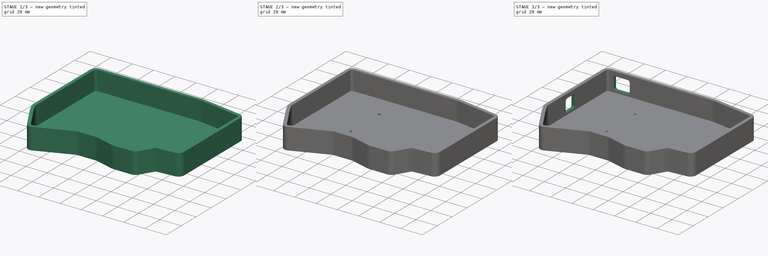
[diagram: build sequence overview — one tinted view per stage of 3, left to right]
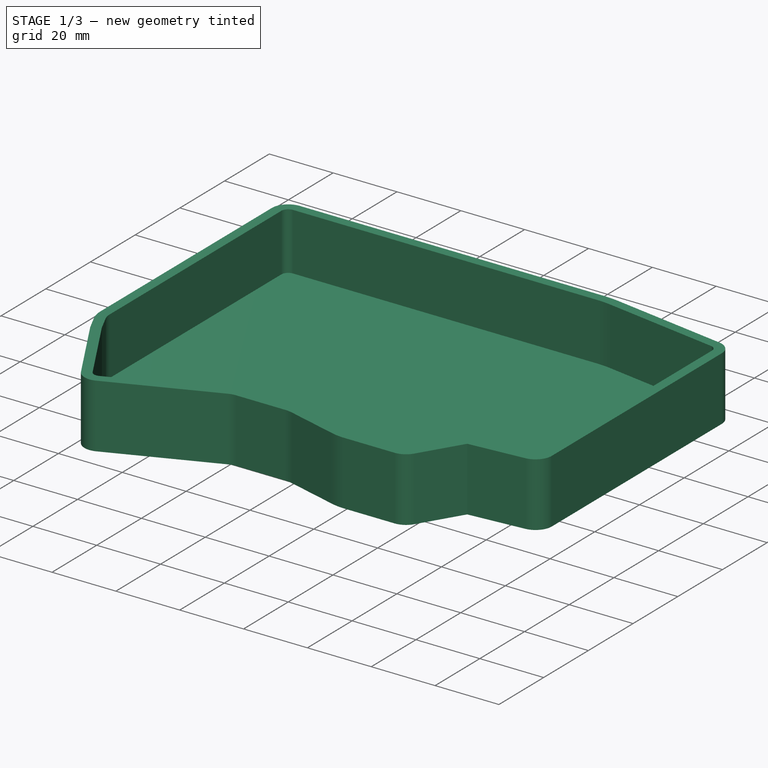
[diagram: stage 1 of 3 — iso view after this stage's code; geometry added in this stage tinted green]
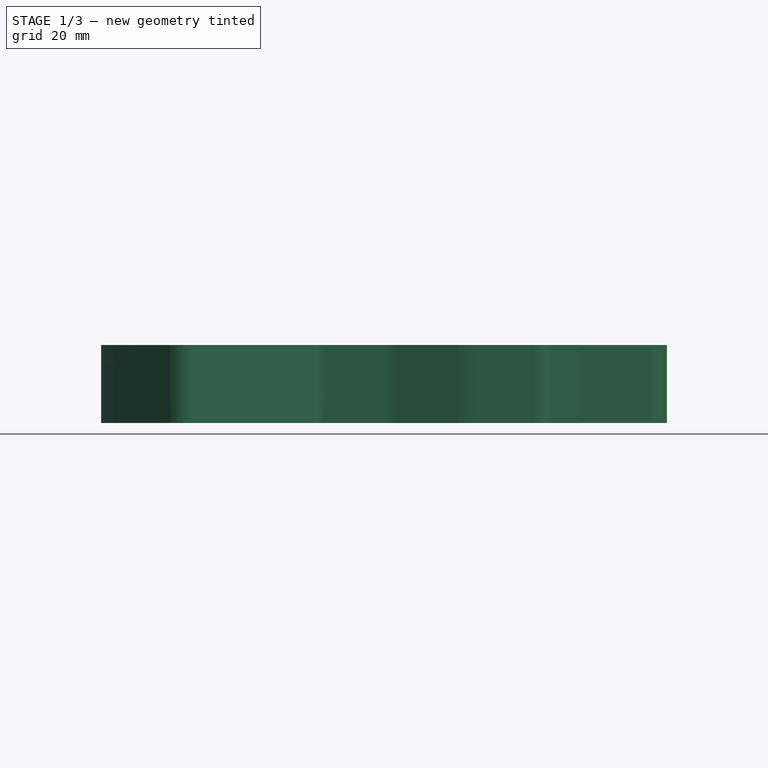
[diagram: stage 1 of 3 — front view after this stage's code; geometry added in this stage tinted green]
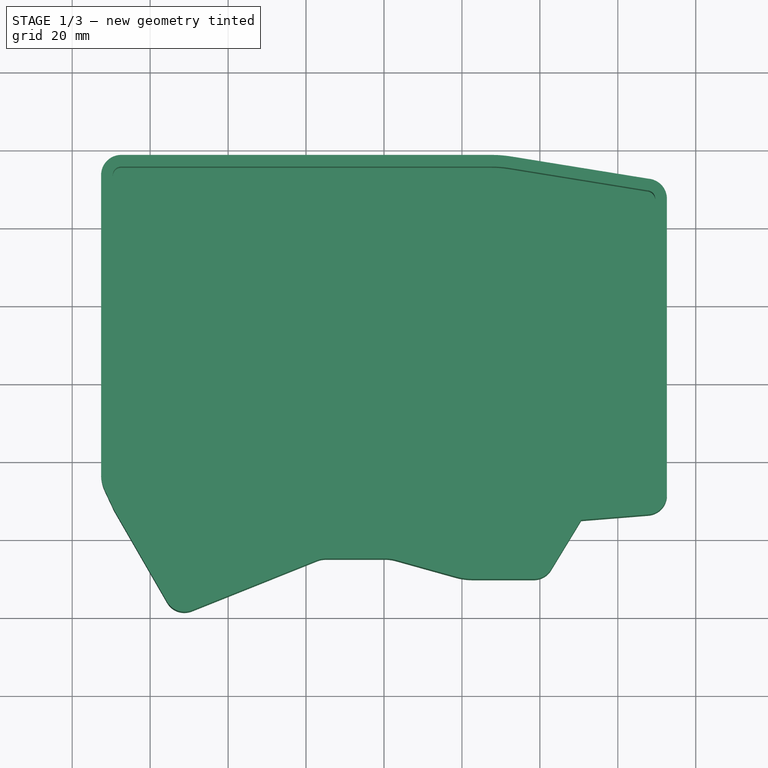
[diagram: stage 1 of 3 — top view after this stage's code; geometry added in this stage tinted green]
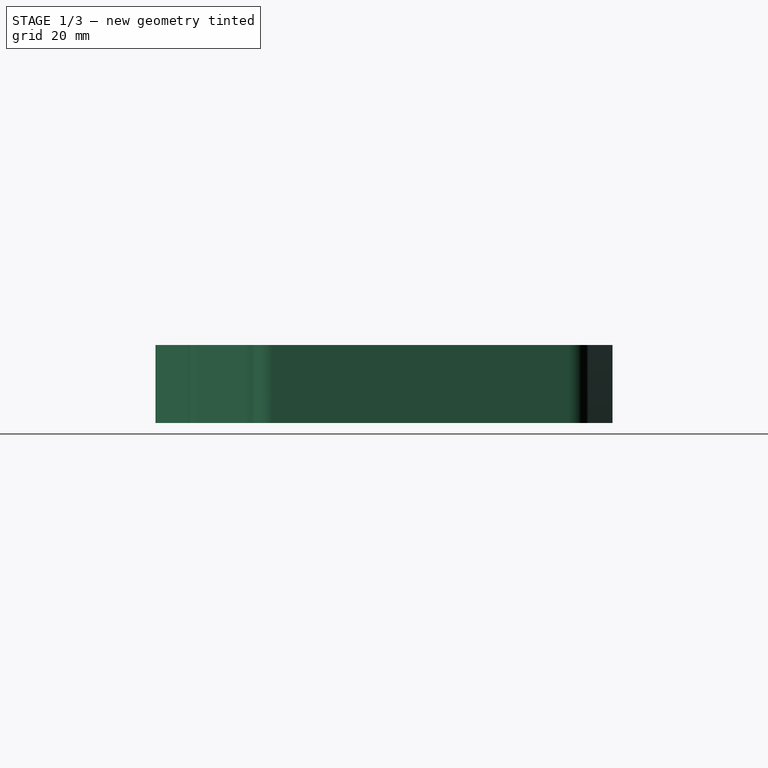
[diagram: stage 1 of 3 — right view after this stage's code; geometry added in this stage tinted green]
FCSTD DOCUMENT  (FreeCAD 2021.311R24301 +3373 (Git))
Label: soflecase
License: All rights reserved
LicenseURL: http://en.wikipedia.org/wiki/All_rights_reserved
objects: Sketcher::SketchObject×7, PartDesign::Pocket×4, Spreadsheet::Sheet×1, PartDesign::Pad×1, PartDesign::Body×1
note: 23 computed .brp shape members not serialized (recipe doc carries the construction recipe); baked Part::Feature solids carry a one-line shape summary decoded from their .brp

FEATURE [Sketcher::SketchObject] Sketch  label="Original Plate"
  FullyConstrained = true
  expr: .Constraints[0] = 1.06mm * Spreadsheet.multiplier
  expr: .Constraints[10] = 45.85mm * Spreadsheet.multiplier
  expr: .Constraints[11] = 17.69mm * Spreadsheet.multiplier
  expr: .Constraints[12] = 49.06mm * Spreadsheet.multiplier
  expr: .Constraints[13] = 17.26mm * Spreadsheet.multiplier
  expr: .Constraints[14] = 64.55mm * Spreadsheet.multiplier
  expr: .Constraints[15] = 12.95mm * Spreadsheet.multiplier
  expr: .Constraints[16] = 68.29000000000001mm * Spreadsheet.multiplier
  expr: .Constraints[17] = 12.44mm * Spreadsheet.multiplier
  expr: .Constraints[18] = 83.51000000000001mm * Spreadsheet.multiplier
  expr: .Constraints[19] = 12.44mm * Spreadsheet.multiplier
  expr: .Constraints[1] = 1.15mm * Spreadsheet.multiplier
  expr: .Constraints[20] = 87.31999999999999mm * Spreadsheet.multiplier
  expr: .Constraints[21] = 13.18mm * Spreadsheet.multiplier
  expr: .Constraints[22] = 119.39mm * Spreadsheet.multiplier
  expr: .Constraints[23] = 26.02mm * Spreadsheet.multiplier
  expr: .Constraints[24] = 120.82mm * Spreadsheet.multiplier
  expr: .Constraints[25] = 25.52mm * Spreadsheet.multiplier
  expr: .Constraints[26] = 136.64mm * Spreadsheet.multiplier
  expr: .Constraints[27] = -2.81mm * Spreadsheet.multiplier
  expr: .Constraints[28] = 137.2mm * Spreadsheet.multiplier
  expr: .Constraints[29] = -5.29mm * Spreadsheet.multiplier
  expr: .Constraints[2] = 19.77mm * Spreadsheet.multiplier
  expr: .Constraints[30] = 137.2mm * Spreadsheet.multiplier
  expr: .Constraints[31] = -81.98999999999999mm * Spreadsheet.multiplier
  expr: .Constraints[32] = 136.04mm * Spreadsheet.multiplier
  expr: .Constraints[33] = -83.15000000000001mm * Spreadsheet.multiplier
  expr: .Constraints[34] = 40.96mm * Spreadsheet.multiplier
  expr: .Constraints[35] = -83.15000000000001mm * Spreadsheet.multiplier
  expr: .Constraints[36] = 36.56mm * Spreadsheet.multiplier
  expr: .Constraints[37] = -82.79000000000001mm * Spreadsheet.multiplier
  expr: .Constraints[38] = 0.99mm * Spreadsheet.multiplier
  expr: .Constraints[39] = -77.03mm * Spreadsheet.multiplier
  expr: .Constraints[3] = 2.66mm * Spreadsheet.multiplier
  expr: .Constraints[40] = 27µm * Spreadsheet.multiplier
  expr: .Constraints[41] = -75.89mm * Spreadsheet.multiplier
  expr: .Constraints[4] = 20.66mm * Spreadsheet.multiplier
  expr: .Constraints[5] = 3.2mm * Spreadsheet.multiplier
  expr: .Constraints[6] = 29.15mm * Spreadsheet.multiplier
  expr: .Constraints[7] = 17.15mm * Spreadsheet.multiplier
  expr: .Constraints[8] = 30.13mm * Spreadsheet.multiplier
  expr: .Constraints[9] = 17.69mm * Spreadsheet.multiplier
  sketch-geometry (39):
    g0: LineSegment StartX=67.5535 StartY=-29.715 StartZ=0 EndX=48.8435 EndY=-31.225 EndZ=0
    g1: LineSegment StartX=47.9535 StartY=-31.765 StartZ=0 EndX=39.4635 EndY=-45.715 EndZ=0
    g2: LineSegment StartX=38.4835 StartY=-46.255 StartZ=0 EndX=22.7635 EndY=-46.255 EndZ=0
    g3: LineSegment StartX=19.5535 StartY=-45.825 StartZ=0 EndX=4.0635 EndY=-41.515 EndZ=0
    g4: LineSegment StartX=0.3235 StartY=-41.005 StartZ=0 EndX=-14.8965 EndY=-41.005 EndZ=0
    g5: LineSegment StartX=-18.7065 StartY=-41.745 StartZ=0 EndX=-50.7765 EndY=-54.585 EndZ=0
    g6: LineSegment StartX=-52.2065 StartY=-54.085 StartZ=0 EndX=-65.73 EndY=-30.66 EndZ=0
    g7: LineSegment StartX=-65.73 StartY=-30.66 StartZ=0 EndX=-68.0265 EndY=-25.755 EndZ=0
    g8: LineSegment StartX=-68.5865 StartY=-23.275 StartZ=0 EndX=-68.5865 EndY=53.425 EndZ=0
    g9: LineSegment StartX=-67.4265 StartY=54.585 StartZ=0 EndX=27.6535 EndY=54.585 EndZ=0
    g10: LineSegment StartX=32.0535 StartY=54.225 StartZ=0 EndX=67.6235 EndY=48.465 EndZ=0
    g11: LineSegment StartX=68.5865 StartY=47.325 StartZ=0 EndX=68.6135 EndY=-28.565 EndZ=0
    g12: ArcOfCircle CenterX=-67.4265 CenterY=53.425 CenterZ=0 NormalX=0 NormalY=0 NormalZ=1 AngleXU=0 Radius=1.16 StartAngle=1.5708 EndAngle=3.14159
    g13: ArcOfCircle CenterX=27.6535 CenterY=27.5161 CenterZ=0 NormalX=0 NormalY=0 NormalZ=1 AngleXU=0 Radius=27.0689 StartAngle=1.40752 EndAngle=1.5708
    g14: ArcOfCircle CenterX=67.4403 CenterY=47.3335 CenterZ=0 NormalX=0 NormalY=0 NormalZ=1 AngleXU=0 Radius=1.14626 StartAngle=6.27579 EndAngle=7.69344
    g15: ArcOfCircle CenterX=67.4597 CenterY=-28.565 CenterZ=0 NormalX=0 NormalY=0 NormalZ=1 AngleXU=0 Radius=1.15382 StartAngle=4.79379 EndAngle=6.28319
    g16: ArcOfCircle CenterX=48.9188 CenterY=-32.3525 CenterZ=0 NormalX=0 NormalY=0 NormalZ=1 AngleXU=0 Radius=1.12996 StartAngle=1.63744 EndAngle=2.59487
    g17: ArcOfCircle CenterX=38.4835 CenterY=-45.0957 CenterZ=0 NormalX=0 NormalY=0 NormalZ=1 AngleXU=0 Radius=1.15926 StartAngle=4.71239 EndAngle=5.71964
    g18: ArcOfCircle CenterX=22.7635 CenterY=-34.0585 CenterZ=0 NormalX=0 NormalY=0 NormalZ=1 AngleXU=0 Radius=12.1965 StartAngle=4.44606 EndAngle=4.71239
    g19: ArcOfCircle CenterX=0.3235 CenterY=-54.9733 CenterZ=0 NormalX=0 NormalY=0 NormalZ=1 AngleXU=0 Radius=13.9683 StartAngle=1.29974 EndAngle=1.5708
    g20: ArcOfCircle CenterX=-14.8965 CenterY=-51.1832 CenterZ=0 NormalX=0 NormalY=0 NormalZ=1 AngleXU=0 Radius=10.1782 StartAngle=1.5708 EndAngle=1.95447
    g21: ArcOfCircle CenterX=-62.8151 CenterY=-23.275 CenterZ=0 NormalX=0 NormalY=0 NormalZ=1 AngleXU=0 Radius=5.77143 StartAngle=3.14159 EndAngle=3.58576
    g22: LineSegment [constr] StartX=-68.5865 StartY=-23.275 StartZ=0 EndX=-62.8151 EndY=-23.275 EndZ=0
    g23: LineSegment [constr] StartX=-14.8965 StartY=-41.005 StartZ=0 EndX=-14.8965 EndY=-51.1832 EndZ=0
    g24: LineSegment [constr] StartX=0.3235 StartY=-41.005 StartZ=0 EndX=0.3235 EndY=-54.9733 EndZ=0
    g25: LineSegment [constr] StartX=22.7635 StartY=-34.0585 StartZ=0 EndX=22.7635 EndY=-46.255 EndZ=0
    g26: LineSegment [constr] StartX=38.4835 StartY=-46.255 StartZ=0 EndX=38.4835 EndY=-45.0957 EndZ=0
    g27: LineSegment [constr] StartX=47.9535 StartY=-31.765 StartZ=0 EndX=48.9188 EndY=-32.3525 EndZ=0
    g28: LineSegment [constr] StartX=68.6135 StartY=-28.565 StartZ=0 EndX=67.4597 EndY=-28.565 EndZ=0
    g29: LineSegment [constr] StartX=67.4403 StartY=47.3335 StartZ=0 EndX=67.6235 EndY=48.465 EndZ=0
    g30: LineSegment [constr] StartX=27.6535 StartY=54.585 StartZ=0 EndX=27.6535 EndY=27.5161 EndZ=0
    g31: LineSegment [constr] StartX=-68.5865 StartY=53.425 StartZ=0 EndX=-67.4265 EndY=53.425 EndZ=0
    g32: LineSegment [constr] StartX=-68.5865 StartY=54.585 StartZ=0 EndX=68.5865 EndY=54.585 EndZ=0
    g33: LineSegment [constr] StartX=68.5865 StartY=54.585 StartZ=0 EndX=68.5865 EndY=-54.585 EndZ=0
    g34: LineSegment [constr] StartX=68.5865 StartY=-54.585 StartZ=0 EndX=-68.5865 EndY=-54.585 EndZ=0
    g35: LineSegment [constr] StartX=-68.5865 StartY=-54.585 StartZ=0 EndX=-68.5865 EndY=54.585 EndZ=0
    g36: GeomPoint [constr] X=0 Y=0 Z=0
    g37: ArcOfCircle CenterX=-51.2012 CenterY=-53.5046 CenterZ=0 NormalX=0 NormalY=0 NormalZ=1 AngleXU=0 Radius=1.16086 StartAngle=3.66516 EndAngle=5.08689
    g38: LineSegment [constr] StartX=-52.2065 StartY=-54.085 StartZ=0 EndX=-51.2012 EndY=-53.5046 EndZ=0
  constraints (114):
    c: DistanceX(g0,g11) = 1.06
    c: DistanceY(g0,g11) = 1.15
    c: DistanceX(g0,g11) = 19.77
    c: DistanceY(g0,g11) = 2.66
    c: DistanceX(g1,g11) = 20.66
    c: DistanceY(g1,g11) = 3.2
    c: DistanceX(g1,g11) = 29.15
    c: DistanceY(g1,g11) = 17.15
    c: DistanceX(g2,g11) = 30.13
    c: DistanceY(g2,g11) = 17.69
    c: DistanceX(g2,g11) = 45.85
    c: DistanceY(g2,g11) = 17.69
    c: DistanceX(g3,g11) = 49.06
    c: DistanceY(g3,g11) = 17.26
    c: DistanceX(g3,g11) = 64.55
    c: DistanceY(g3,g11) = 12.95
    c: DistanceX(g4,g11) = 68.29
    c: DistanceY(g4,g11) = 12.44
    c: DistanceX(g4,g11) = 83.51
    c: DistanceY(g4,g11) = 12.44
    c: DistanceX(g5,g11) = 87.32
    c: DistanceY(g5,g11) = 13.18
    c: DistanceX(g5,g11) = 119.39
    c: DistanceY(g5,g11) = 26.02
    c: DistanceX(g6,g11) = 120.82
    c: DistanceY(g6,g11) = 25.52
    c: DistanceX(g7,g11) = 136.64
    c: DistanceY(g7,g11) = -2.81
    c: DistanceX(g8,g11) = 137.2
    c: DistanceY(g8,g11) = -5.29
    c: DistanceX(g8,g11) = 137.2
    c: DistanceY(g8,g11) = -81.99
    c: DistanceX(g9,g11) = 136.04
    c: DistanceY(g9,g11) = -83.15
    c: DistanceX(g9,g11) = 40.96
    c: DistanceY(g9,g11) = -83.15
    c: DistanceX(g10,g11) = 36.56
    c: DistanceY(g10,g11) = -82.79
    c: DistanceX(g10,g11) = 0.99
    c: DistanceY(g10,g11) = -77.03
    c: DistanceX(g11,g11) = 0.027
    c: DistanceY(g11,g11) = -75.89
    c: Coincident(g12,g8)
    c: Coincident(g12,g9)
    c: Coincident(g13,g9)
    c: Coincident(g13,g10)
    c: Coincident(g14,g10)
    c: Coincident(g14,g11)
    c: Coincident(g15,g11)
    c: Coincident(g15,g0)
    c: Coincident(g16,g0)
    c: Coincident(g16,g1)
    c: Coincident(g17,g1)
    c: Coincident(g17,g2)
    c: Coincident(g18,g2)
    c: Coincident(g18,g3)
    c: Coincident(g19,g3)
    c: Coincident(g19,g4)
    c: Coincident(g20,g4)
    c: Coincident(g20,g5)
    c: Coincident(g21,g7)
    c: Coincident(g21,g8)
    c: Coincident(g22,g8)
    c: Coincident(g22,g21)
    c: Horizontal(g22)
    c: Coincident(g23,g4)
    c: Coincident(g23,g20)
    c: Vertical(g23)
    c: Coincident(g24,g4)
    c: Coincident(g24,g19)
    c: Vertical(g24)
    c: Coincident(g25,g18)
    c: Coincident(g25,g2)
    c: Vertical(g25)
    c: Coincident(g26,g2)
    c: Coincident(g26,g17)
    c: Vertical(g26)
    c: Coincident(g27,g1)
    c: Coincident(g27,g16)
    c: Angle(g1,g27) = 1.5708
    c: Coincident(g28,g11)
    c: Coincident(g28,g15)
    c: Horizontal(g28)
    c: Coincident(g29,g14)
    c: Coincident(g29,g10)
    c: Angle(g10,g29) = 1.5708
    c: Coincident(g30,g9)
    c: Coincident(g30,g13)
    c: Vertical(g30)
    c: Coincident(g31,g8)
    c: Coincident(g31,g12)
    c: Horizontal(g31)
    c: Coincident(g32,g33)
    c: Coincident(g33,g34)
    c: Coincident(g34,g35)
    c: Coincident(g35,g32)
    c: Horizontal(g32)
    c: Horizontal(g34)
    c: Vertical(g33)
    c: Vertical(g35)
    c: PointOnObject(g9,g32)
    c: PointOnObject(g11,g33)
    c: PointOnObject(g5,g34)
    c: PointOnObject(g8,g35)
    c: Symmetric(g34,g32,g36)
    c: Coincident(g36,g-1)
    c: DistanceX(g7) = -65.73
    c: DistanceY(g7) = -30.66
    c: Coincident(g6,g7)
    c: Coincident(g37,g6)
    c: Coincident(g37,g5) = -65.73
    c: Coincident(g38,g6) = -30.66
    c: Coincident(g38,g37)
    c: Perpendicular(g6,g38)
FEATURE [Spreadsheet::Sheet] Spreadsheet
  PythonMode = false
  cells = A1(multiplier)=1; A3=case height; B3(caseheight)=20; A4=case bottom thickness; B4(casebottomthickness)=2; A5=case wall width; B5(wallwidth)=3; A6=outer edge offset; B6(outeroffset)==.wallwidth + inneroffset; A7=inner edge offset; B7(inneroffset)=1; A8=screw hole size; B8(screw)=2.4; A9=controller hole width; B9(controllerwidth)=15; A10=trrs hole width; B10(trrswidth)=12
FEATURE [Sketcher::SketchObject] Sketch001  label="Outer wall"
  ExternalGeometry = -> [Sketch]
  FullyConstrained = true
  MapMode = 5
  Support = -> [XY_Plane]
  expr: .Constraints[12] = Spreadsheet.outeroffset
  expr: .Constraints[13] = Spreadsheet.outeroffset
  expr: .Constraints[14] = Spreadsheet.outeroffset
  expr: .Constraints[15] = Spreadsheet.outeroffset
  expr: .Constraints[16] = Spreadsheet.outeroffset
  expr: .Constraints[17] = Spreadsheet.outeroffset
  expr: .Constraints[18] = Spreadsheet.outeroffset
  expr: .Constraints[19] = Spreadsheet.outeroffset
  expr: .Constraints[20] = Spreadsheet.outeroffset
  expr: .Constraints[21] = Spreadsheet.outeroffset
  expr: .Constraints[22] = Spreadsheet.outeroffset
  expr: .Constraints[23] = Spreadsheet.outeroffset
  sketch-geometry (44):
    g0: LineSegment [constr] StartX=-19.8865 StartY=54.585 StartZ=0 EndX=-19.8865 EndY=58.585 EndZ=0
    g1: LineSegment [constr] StartX=49.8385 StartY=51.345 StartZ=0 EndX=50.4779 EndY=55.2936 EndZ=0
    g2: LineSegment [constr] StartX=68.6 StartY=9.38 StartZ=0 EndX=72.6 EndY=9.38 EndZ=0
    g3: LineSegment [constr] StartX=58.1985 StartY=-30.47 StartZ=0 EndX=58.5203 EndY=-34.457 EndZ=0
    g4: LineSegment [constr] StartX=43.7085 StartY=-38.74 StartZ=0 EndX=47.1254 EndY=-40.8196 EndZ=0
    g5: LineSegment [constr] StartX=30.6235 StartY=-46.255 StartZ=0 EndX=30.6235 EndY=-50.255 EndZ=0
    g6: LineSegment [constr] StartX=11.8085 StartY=-43.67 StartZ=0 EndX=10.7363 EndY=-47.5236 EndZ=0
    g7: LineSegment [constr] StartX=-7.2865 StartY=-41.005 StartZ=0 EndX=-7.2865 EndY=-45.005 EndZ=0
    g8: LineSegment [constr] StartX=-34.7415 StartY=-48.165 StartZ=0 EndX=-33.2547 EndY=-51.8784 EndZ=0
    g9: LineSegment [constr] StartX=-58.9682 StartY=-42.3725 StartZ=0 EndX=-62.4324 EndY=-44.3724 EndZ=0
    g10: LineSegment [constr] StartX=-68.5865 StartY=15.075 StartZ=0 EndX=-72.5865 EndY=15.075 EndZ=0
    g11: LineSegment [constr] StartX=-66.8782 StartY=-28.2075 StartZ=0 EndX=-70.5009 EndY=-29.9036 EndZ=0
    g12: LineSegment StartX=-67.4265 StartY=58.585 StartZ=0 EndX=27.6535 EndY=58.585 EndZ=0
    g13: LineSegment StartX=32.6981 StartY=58.1727 StartZ=0 EndX=67.8932 EndY=52.4734 EndZ=0
    g14: LineSegment StartX=72.6 StartY=47.2953 StartZ=0 EndX=72.6 EndY=-28.9378 EndZ=0
    g15: LineSegment StartX=67.8788 StartY=-33.7018 StartZ=0 EndX=50.6091 EndY=-35.0955 EndZ=0
    g16: LineSegment StartX=42.8454 StartY=-47.852 StartZ=0 EndX=50.6091 EndY=-35.0955 EndZ=0
    g17: LineSegment StartX=22.7635 StartY=-50.255 StartZ=0 EndX=38.5599 EndY=-50.255 EndZ=0
    g18: LineSegment StartX=2.99931 StartY=-45.3708 StartZ=0 EndX=18.3535 EndY=-49.6431 EndZ=0
    g19: LineSegment StartX=-14.8965 StartY=-45.005 StartZ=0 EndX=0.3235 EndY=-45.005 EndZ=0
    g20: LineSegment StartX=-49.2685 StartY=-58.2899 StartZ=0 EndX=-17.1719 EndY=-45.4393 EndZ=0
    g21: LineSegment StartX=-55.6707 StartY=-56.0849 StartZ=0 EndX=-69.2799 EndY=-32.5114 EndZ=0
    g22: LineSegment StartX=-69.2799 StartY=-32.5114 StartZ=0 EndX=-71.6385 EndY=-27.4738 EndZ=0
    g23: LineSegment StartX=-72.5865 StartY=-23.3143 StartZ=0 EndX=-72.5865 EndY=53.425 EndZ=0
    g24: ArcOfCircle CenterX=-67.4265 CenterY=53.425 CenterZ=0 NormalX=0 NormalY=0 NormalZ=1 AngleXU=0 Radius=5.16 StartAngle=1.5708 EndAngle=3.14159
    g25: ArcOfCircle CenterX=27.6535 CenterY=27.5161 CenterZ=0 NormalX=0 NormalY=0 NormalZ=1 AngleXU=0 Radius=31.0689 StartAngle=1.40771 EndAngle=1.5708
    g26: ArcOfCircle CenterX=67.4597 CenterY=-28.565 CenterZ=0 NormalX=0 NormalY=0 NormalZ=1 AngleXU=0 Radius=5.15382 StartAngle=4.79379 EndAngle=6.21079
    g27: ArcOfCircle CenterX=67.4403 CenterY=47.3335 CenterZ=0 NormalX=0 NormalY=0 NormalZ=1 AngleXU=0 Radius=5.15987 StartAngle=6.27579 EndAngle=7.76609
    g28: LineSegment [constr] StartX=27.6535 StartY=54.585 StartZ=0 EndX=27.6535 EndY=58.585 EndZ=0
    g29: ArcOfCircle CenterX=38.4835 CenterY=-45.0957 CenterZ=0 NormalX=0 NormalY=0 NormalZ=1 AngleXU=0 Radius=5.15983 StartAngle=4.7272 EndAngle=5.71964
    g30: ArcOfCircle CenterX=22.7635 CenterY=-34.0585 CenterZ=0 NormalX=0 NormalY=0 NormalZ=1 AngleXU=0 Radius=16.1965 StartAngle=4.43663 EndAngle=4.71239
    g31: LineSegment [constr] StartX=38.4835 StartY=-45.0957 StartZ=0 EndX=42.8454 EndY=-47.852 EndZ=0
    g32: LineSegment [constr] StartX=22.7635 StartY=-34.0585 StartZ=0 EndX=22.7635 EndY=-50.255 EndZ=0
    g33: ArcOfCircle CenterX=0.3235 CenterY=-54.9733 CenterZ=0 NormalX=0 NormalY=0 NormalZ=1 AngleXU=0 Radius=9.96833 StartAngle=1.29903 EndAngle=1.5708
    g34: LineSegment [constr] StartX=0.3235 StartY=-54.9733 StartZ=0 EndX=0.3235 EndY=-41.005 EndZ=0
    g35: ArcOfCircle CenterX=-14.8965 CenterY=-51.1832 CenterZ=0 NormalX=0 NormalY=0 NormalZ=1 AngleXU=0 Radius=6.17818 StartAngle=1.5708 EndAngle=1.94797
    g36: LineSegment [constr] StartX=-14.8965 StartY=-51.1832 StartZ=0 EndX=-14.8965 EndY=-41.005 EndZ=0
    g37: ArcOfCircle CenterX=-51.2012 CenterY=-53.5046 CenterZ=0 NormalX=0 NormalY=0 NormalZ=1 AngleXU=0 Radius=5.16086 StartAngle=3.66516 EndAngle=5.09622
    g38: LineSegment [constr] StartX=-51.2012 StartY=-53.5046 StartZ=0 EndX=-55.6707 EndY=-56.0849 EndZ=0
    g39: ArcOfCircle CenterX=-62.8151 CenterY=-23.275 CenterZ=0 NormalX=0 NormalY=0 NormalZ=1 AngleXU=0 Radius=9.77151 StartAngle=3.14561 EndAngle=3.58576
    g40: LineSegment [constr] StartX=-62.8151 StartY=-23.275 StartZ=0 EndX=-71.6385 EndY=-27.4738 EndZ=0
    g41: LineSegment [constr] StartX=67.4597 StartY=-28.565 StartZ=0 EndX=67.8788 EndY=-33.7018 EndZ=0
    g42: LineSegment [constr] StartX=-67.4265 StartY=53.425 StartZ=0 EndX=-72.5865 EndY=53.425 EndZ=0
    g43: LineSegment [constr] StartX=67.4403 StartY=47.3335 StartZ=0 EndX=72.6 EndY=47.2953 EndZ=0
  constraints (122):
    c: Vertical(g0)
    c: Horizontal(g2)
    c: Perpendicular(g-14,g10)
    c: Perpendicular(g-16,g11)
    c: Perpendicular(g-12,g9)
    c: Perpendicular(g8,g-11)
    c: Perpendicular(g7,g-10)
    c: Perpendicular(g6,g-9)
    c: Perpendicular(g5,g-8)
    c: Perpendicular(g-7,g4)
    c: Perpendicular(g-6,g3)
    c: Perpendicular(g-4,g1)
    c: Distance(g0) = 4
    c: Distance(g1) = 4
    c: Distance(g2) = 4
    c: Distance(g3) = 4
    c: Distance(g4) = 4
    c: Distance(g5) = 4
    c: Distance(g6) = 4
    c: Distance(g7) = 4
    c: Distance(g8) = 4
    c: Distance(g9) = 4
    c: Distance(g11) = 4
    c: Distance(g10) = 4
    c: Symmetric(g-17,g-18,g0)
    c: Symmetric(g-18,g-19,g1)
    c: Symmetric(g-19,g-20,g2)
    c: Symmetric(g-21,g-20,g3)
    c: Symmetric(g-21,g-22,g4)
    c: Symmetric(g-22,g-23,g5)
    c: Symmetric(g-23,g-24,g6)
    c: Symmetric(g-25,g-24,g7)
    c: Symmetric(g-26,g-25,g8)
    c: Symmetric(g-26,g-16,g9)
    c: Symmetric(g-27,g-16,g11)
    c: Symmetric(g-27,g-17,g10)
    c: Horizontal(g12)
    c: Vertical(g14)
    c: Perpendicular(g13,g1)
    c: Horizontal(g17)
    c: Horizontal(g19)
    c: Vertical(g23)
    c: Perpendicular(g22,g11)
    c: Perpendicular(g21,g9)
    c: Perpendicular(g6,g18)
    c: Perpendicular(g4,g16)
    c: Perpendicular(g3,g15)
    c: Coincident(g24,g-17)
    c: Coincident(g24,g23)
    c: Coincident(g24,g12)
    c: Coincident(g25,g-18)
    c: Coincident(g25,g12)
    c: Coincident(g25,g13)
    c: Coincident(g26,g-20)
    c: Coincident(g26,g14)
    c: Coincident(g26,g15)
    c: Coincident(g27,g-19)
    c: Coincident(g27,g13)
    c: PointOnObject(g10,g23)
    c: PointOnObject(g0,g12)
    c: PointOnObject(g1,g13)
    c: PointOnObject(g2,g14)
    c: PointOnObject(g3,g15)
    c: PointOnObject(g4,g16)
    c: PointOnObject(g5,g17)
    c: PointOnObject(g6,g18)
    c: PointOnObject(g7,g19)
    c: Perpendicular(g8,g20)
    c: PointOnObject(g8,g20)
    c: PointOnObject(g9,g21)
    c: PointOnObject(g11,g22)
    c: Coincident(g27,g14)
    c: Coincident(g28,g-18)
    c: Coincident(g28,g12)
    c: Vertical(g28)
    c: Coincident(g29,g-22)
    c: Coincident(g29,g17)
    c: Coincident(g29,g16)
    c: Coincident(g30,g-23)
    c: Coincident(g30,g18)
    c: Coincident(g30,g17)
    c: Coincident(g31,g-22)
    c: PointOnObject(g-22,g31)
    c: Coincident(g32,g-23)
    c: Coincident(g32,g17)
    c: PointOnObject(g-23,g32)
    c: Coincident(g31,g16)
    c: Coincident(g33,g-24)
    c: Coincident(g33,g19)
    c: Coincident(g33,g18)
    c: Coincident(g34,g-24)
    c: Coincident(g34,g-24)
    c: PointOnObject(g19,g34)
    c: Coincident(g35,g-25)
    c: Coincident(g35,g20)
    c: Coincident(g35,g19)
    c: Coincident(g36,g-25)
    c: Coincident(g36,g-25)
    c: PointOnObject(g19,g36)
    c: Coincident(g37,g-26)
    c: Coincident(g37,g21)
    c: Coincident(g37,g20)
    c: Coincident(g38,g-26)
    c: Coincident(g38,g21)
    c: PointOnObject(g-26,g38)
    c: Coincident(g21,g22)
    c: Coincident(g39,g-27)
    c: Coincident(g39,g22)
    c: Coincident(g39,g23)
    c: Coincident(g40,g-27)
    c: Coincident(g40,g22)
    c: PointOnObject(g-27,g40)
    c: Coincident(g41,g-20)
    c: Coincident(g41,g15)
    c: PointOnObject(g-20,g41)
    c: Coincident(g42,g-17)
    c: Coincident(g42,g23)
    c: Horizontal(g42)
    c: Coincident(g43,g27)
    c: Coincident(g43,g14)
    c: PointOnObject(g-19,g43)
    c: Coincident(g16,g15)
FEATURE [PartDesign::Pad] Pad
  ClaimChildren = false
  Direction = (1,1,1)
  Fit = 0
  FitJoin = 0
  InnerFit = 0
  InnerFitJoin = 0
  InnerTaperAngle = 0
  InnerTaperAngleRev = 0
  Length = 20
  Length2 = 100
  NewSolid = false
  Profile = -> Sketch001
  Reversed = true
  Suppress = false
  Type = 0
  expr: Length = Spreadsheet.caseheight
FEATURE [Sketcher::SketchObject] Sketch002  label="Inner wall"
  ExternalGeometry = -> [Sketch]
  FullyConstrained = true
  MapMode = 5
  Support = -> [XY_Plane]
  expr: .Constraints[12] = Spreadsheet.inneroffset
  expr: .Constraints[13] = Spreadsheet.inneroffset
  expr: .Constraints[14] = Spreadsheet.inneroffset
  expr: .Constraints[15] = Spreadsheet.inneroffset
  expr: .Constraints[16] = Spreadsheet.inneroffset
  expr: .Constraints[17] = Spreadsheet.inneroffset
  expr: .Constraints[18] = Spreadsheet.inneroffset
  expr: .Constraints[19] = Spreadsheet.inneroffset
  expr: .Constraints[20] = Spreadsheet.inneroffset
  expr: .Constraints[21] = Spreadsheet.inneroffset
  expr: .Constraints[22] = Spreadsheet.inneroffset
  expr: .Constraints[23] = Spreadsheet.inneroffset
  sketch-geometry (46):
    g0: LineSegment [constr] StartX=-19.8865 StartY=54.585 StartZ=0 EndX=-19.8865 EndY=55.585 EndZ=0
    g1: LineSegment [constr] StartX=49.8385 StartY=51.345 StartZ=0 EndX=49.9984 EndY=52.3321 EndZ=0
    g2: LineSegment [constr] StartX=68.6 StartY=9.38 StartZ=0 EndX=69.6 EndY=9.38 EndZ=0
    g3: LineSegment [constr] StartX=58.1985 StartY=-30.47 StartZ=0 EndX=58.2789 EndY=-31.4668 EndZ=0
    g4: LineSegment [constr] StartX=43.7085 StartY=-38.74 StartZ=0 EndX=44.5627 EndY=-39.2599 EndZ=0
    g5: LineSegment [constr] StartX=30.6235 StartY=-46.255 StartZ=0 EndX=30.6235 EndY=-47.255 EndZ=0
    g6: LineSegment [constr] StartX=11.8085 StartY=-43.67 StartZ=0 EndX=11.5404 EndY=-44.6334 EndZ=0
    g7: LineSegment [constr] StartX=-7.2865 StartY=-41.005 StartZ=0 EndX=-7.2865 EndY=-42.005 EndZ=0
    g8: LineSegment [constr] StartX=-34.7415 StartY=-48.165 StartZ=0 EndX=-34.3698 EndY=-49.0934 EndZ=0
    g9: LineSegment [constr] StartX=-58.9682 StartY=-42.3725 StartZ=0 EndX=-59.8343 EndY=-42.8725 EndZ=0
    g10: LineSegment [constr] StartX=-68.5865 StartY=15.075 StartZ=0 EndX=-69.5865 EndY=15.075 EndZ=0
    g11: LineSegment [constr] StartX=-66.8782 StartY=-28.2075 StartZ=0 EndX=-67.7839 EndY=-28.6315 EndZ=0
    g12: LineSegment StartX=-67.4265 StartY=55.585 StartZ=0 EndX=27.6535 EndY=55.585 EndZ=0
    g13: LineSegment StartX=32.066 StartY=55.236 StartZ=0 EndX=67.5451 EndY=49.4907 EndZ=0
    g14: LineSegment StartX=69.6 StartY=47.3175 StartZ=0 EndX=69.6 EndY=-28.8058 EndZ=0
    g15: LineSegment StartX=67.6348 StartY=-30.7117 StartZ=0 EndX=48.9136 EndY=-32.2226 EndZ=0
    g16: LineSegment StartX=40.309 StartY=-46.2493 StartZ=0 EndX=48.8077 EndY=-32.2849 EndZ=0
    g17: LineSegment StartX=22.7635 StartY=-47.255 StartZ=0 EndX=38.5082 EndY=-47.255 EndZ=0
    g18: LineSegment StartX=3.80401 StartY=-42.4808 StartZ=0 EndX=19.1643 EndY=-46.7547 EndZ=0
    g19: LineSegment StartX=-14.8965 StartY=-42.005 StartZ=0 EndX=0.3235 EndY=-42.005 EndZ=0
    g20: LineSegment StartX=-50.4073 StartY=-55.5144 StartZ=0 EndX=-18.3335 EndY=-42.6728 EndZ=0
    g21: LineSegment StartX=-53.0725 StartY=-54.585 StartZ=0 EndX=-66.6175 EndY=-31.1228 EndZ=0
    g22: LineSegment StartX=-66.6175 StartY=-31.1228 StartZ=0 EndX=-68.9295 EndY=-26.1847 EndZ=0
    g23: LineSegment StartX=-69.5865 StartY=-23.2913 StartZ=0 EndX=-69.5865 EndY=53.425 EndZ=0
    g24: ArcOfCircle CenterX=-67.4265 CenterY=53.425 CenterZ=0 NormalX=0 NormalY=0 NormalZ=1 AngleXU=0 Radius=2.16 StartAngle=1.5708 EndAngle=3.14159
    g25: ArcOfCircle CenterX=27.6535 CenterY=27.5161 CenterZ=0 NormalX=0 NormalY=0 NormalZ=1 AngleXU=0 Radius=28.0689 StartAngle=1.41294 EndAngle=1.5708
    g26: ArcOfCircle CenterX=67.4597 CenterY=-28.565 CenterZ=0 NormalX=0 NormalY=0 NormalZ=1 AngleXU=0 Radius=2.15382 StartAngle=4.79379 EndAngle=6.17116
    g27: ArcOfCircle CenterX=67.4403 CenterY=47.3335 CenterZ=0 NormalX=0 NormalY=0 NormalZ=1 AngleXU=0 Radius=2.15979 StartAngle=6.27579 EndAngle=7.80542
    g28: LineSegment [constr] StartX=27.6535 StartY=54.585 StartZ=0 EndX=27.6535 EndY=55.585 EndZ=0
    g29: ArcOfCircle CenterX=38.4835 CenterY=-45.0957 CenterZ=0 NormalX=0 NormalY=0 NormalZ=1 AngleXU=0 Radius=2.1594 StartAngle=4.72384 EndAngle=5.71964
    g30: ArcOfCircle CenterX=22.7635 CenterY=-34.0585 CenterZ=0 NormalX=0 NormalY=0 NormalZ=1 AngleXU=0 Radius=13.1965 StartAngle=4.43615 EndAngle=4.71239
    g31: LineSegment [constr] StartX=38.4835 StartY=-45.0957 StartZ=0 EndX=40.309 EndY=-46.2493 EndZ=0
    g32: LineSegment [constr] StartX=22.7635 StartY=-34.0585 StartZ=0 EndX=22.7635 EndY=-47.255 EndZ=0
    g33: ArcOfCircle CenterX=0.3235 CenterY=-54.9733 CenterZ=0 NormalX=0 NormalY=0 NormalZ=1 AngleXU=0 Radius=12.9683 StartAngle=1.29908 EndAngle=1.5708
    g34: LineSegment [constr] StartX=0.3235 StartY=-54.9733 StartZ=0 EndX=0.3235 EndY=-41.005 EndZ=0
    g35: ArcOfCircle CenterX=-14.8965 CenterY=-51.1832 CenterZ=0 NormalX=0 NormalY=0 NormalZ=1 AngleXU=0 Radius=9.17818 StartAngle=1.5708 EndAngle=1.95462
    g36: LineSegment [constr] StartX=-14.8965 StartY=-51.1832 StartZ=0 EndX=-14.8965 EndY=-41.005 EndZ=0
    g37: ArcOfCircle CenterX=-51.2012 CenterY=-53.5046 CenterZ=0 NormalX=0 NormalY=0 NormalZ=1 AngleXU=0 Radius=2.16086 StartAngle=3.66516 EndAngle=5.08858
    g38: LineSegment [constr] StartX=-51.2012 StartY=-53.5046 StartZ=0 EndX=-53.0725 EndY=-54.585 EndZ=0
    g39: ArcOfCircle CenterX=-62.8151 CenterY=-23.275 CenterZ=0 NormalX=0 NormalY=0 NormalZ=1 AngleXU=0 Radius=6.77145 StartAngle=3.14401 EndAngle=3.58576
    g40: LineSegment [constr] StartX=-62.8151 StartY=-23.275 StartZ=0 EndX=-68.9295 EndY=-26.1847 EndZ=0
    g41: LineSegment [constr] StartX=67.4597 StartY=-28.565 StartZ=0 EndX=67.6348 EndY=-30.7117 EndZ=0
    g42: LineSegment [constr] StartX=-67.4265 StartY=53.425 StartZ=0 EndX=-69.5865 EndY=53.425 EndZ=0
    g43: LineSegment [constr] StartX=67.4403 StartY=47.3335 StartZ=0 EndX=69.6 EndY=47.3175 EndZ=0
    g44: ArcOfCircle CenterX=48.9188 CenterY=-32.3525 CenterZ=0 NormalX=0 NormalY=0 NormalZ=1 AngleXU=0 Radius=0.129964 StartAngle=1.61039 EndAngle=2.59487
    g45: LineSegment [constr] StartX=47.9535 StartY=-31.765 StartZ=0 EndX=48.8077 EndY=-32.2849 EndZ=0
  constraints (127):
    c: Vertical(g0)
    c: Horizontal(g2)
    c: Perpendicular(g-14,g10)
    c: Perpendicular(g-16,g11)
    c: Perpendicular(g-12,g9)
    c: Perpendicular(g8,g-11)
    c: Perpendicular(g7,g-10)
    c: Perpendicular(g6,g-9)
    c: Perpendicular(g5,g-8)
    c: Perpendicular(g-7,g4)
    c: Perpendicular(g-6,g3)
    c: Perpendicular(g-4,g1)
    c: Distance(g0) = 1
    c: Distance(g1) = 1
    c: Distance(g2) = 1
    c: Distance(g3) = 1
    c: Distance(g4) = 1
    c: Distance(g5) = 1
    c: Distance(g6) = 1
    c: Distance(g7) = 1
    c: Distance(g8) = 1
    c: Distance(g9) = 1
    c: Distance(g11) = 1
    c: Distance(g10) = 1
    c: Symmetric(g-17,g-18,g0)
    c: Symmetric(g-18,g-19,g1)
    c: Symmetric(g-19,g-20,g2)
    c: Symmetric(g-21,g-20,g3)
    c: Symmetric(g-21,g-22,g4)
    c: Symmetric(g-22,g-23,g5)
    c: Symmetric(g-23,g-24,g6)
    c: Symmetric(g-25,g-24,g7)
    c: Symmetric(g-26,g-25,g8)
    c: Symmetric(g-26,g-16,g9)
    c: Symmetric(g-27,g-16,g11)
    c: Symmetric(g-27,g-17,g10)
    c: Horizontal(g12)
    c: Vertical(g14)
    c: Perpendicular(g13,g1)
    c: Horizontal(g17)
    c: Horizontal(g19)
    c: Vertical(g23)
    c: Perpendicular(g22,g11)
    c: Perpendicular(g21,g9)
    c: Perpendicular(g6,g18)
    c: Perpendicular(g4,g16)
    c: Perpendicular(g3,g15)
    c: Coincident(g24,g-17)
    c: Coincident(g24,g23)
    c: Coincident(g24,g12)
    c: Coincident(g25,g-18)
    c: Coincident(g25,g12)
    c: Coincident(g25,g13)
    c: Coincident(g26,g-20)
    c: Coincident(g26,g14)
    c: Coincident(g26,g15)
    c: Coincident(g27,g-19)
    c: Coincident(g27,g13)
    c: PointOnObject(g10,g23)
    c: PointOnObject(g0,g12)
    c: PointOnObject(g1,g13)
    c: PointOnObject(g2,g14)
    c: PointOnObject(g3,g15)
    c: PointOnObject(g4,g16)
    c: PointOnObject(g5,g17)
    c: PointOnObject(g6,g18)
    c: PointOnObject(g7,g19)
    c: Perpendicular(g8,g20)
    c: PointOnObject(g8,g20)
    c: PointOnObject(g9,g21)
    c: PointOnObject(g11,g22)
    c: Coincident(g27,g14)
    c: Coincident(g28,g-18)
    c: Coincident(g28,g12)
    c: Vertical(g28)
    c: Coincident(g29,g-22)
    c: Coincident(g29,g17)
    c: Coincident(g29,g16)
    c: Coincident(g30,g-23)
    c: Coincident(g30,g18)
    c: Coincident(g30,g17)
    c: Coincident(g31,g-22)
    c: PointOnObject(g-22,g31)
    c: Coincident(g32,g-23)
    c: Coincident(g32,g17)
    c: PointOnObject(g-23,g32)
    c: Coincident(g31,g16)
    c: Coincident(g33,g-24)
    c: Coincident(g33,g19)
    c: Coincident(g33,g18)
    c: Coincident(g34,g-24)
    c: Coincident(g34,g-24)
    c: PointOnObject(g19,g34)
    c: Coincident(g35,g-25)
    c: Coincident(g35,g20)
    c: Coincident(g35,g19)
    c: Coincident(g36,g-25)
    c: Coincident(g36,g-25)
    c: PointOnObject(g19,g36)
    c: Coincident(g37,g-26)
    c: Coincident(g37,g21)
    c: Coincident(g37,g20)
    c: Coincident(g38,g-26)
    c: Coincident(g38,g21)
    c: PointOnObject(g-26,g38)
    c: Coincident(g21,g22)
    c: Coincident(g39,g-27)
    c: Coincident(g39,g22)
    c: Coincident(g39,g23)
    c: Coincident(g40,g-27)
    c: Coincident(g40,g22)
    c: PointOnObject(g-27,g40)
    c: Coincident(g41,g-20)
    c: Coincident(g41,g15)
    c: PointOnObject(g-20,g41)
    c: Coincident(g42,g-17)
    c: Coincident(g42,g23)
    c: Horizontal(g42)
    c: Coincident(g43,g27)
    c: Coincident(g43,g14)
    c: PointOnObject(g-19,g43)
    c: Coincident(g44,g-21)
    c: Coincident(g44,g16)
    c: Coincident(g44,g15)
    c: Coincident(g45,g-21)
    c: Coincident(g45,g16)
    c: Perpendicular(g-7,g45)
FEATURE [PartDesign::Pocket] Pocket
  BaseFeature = -> Pad
  ClaimChildren = false
  Fit = 0
  FitJoin = 0
  InnerFit = 0
  InnerFitJoin = 0
  InnerTaperAngle = 0
  InnerTaperAngleRev = 0
  Length = 18
  Length2 = 100
  NewSolid = false
  Profile = -> Sketch002
  Suppress = false
  Type = 0
  expr: Length = Spreadsheet.caseheight - Spreadsheet.casebottomthickness
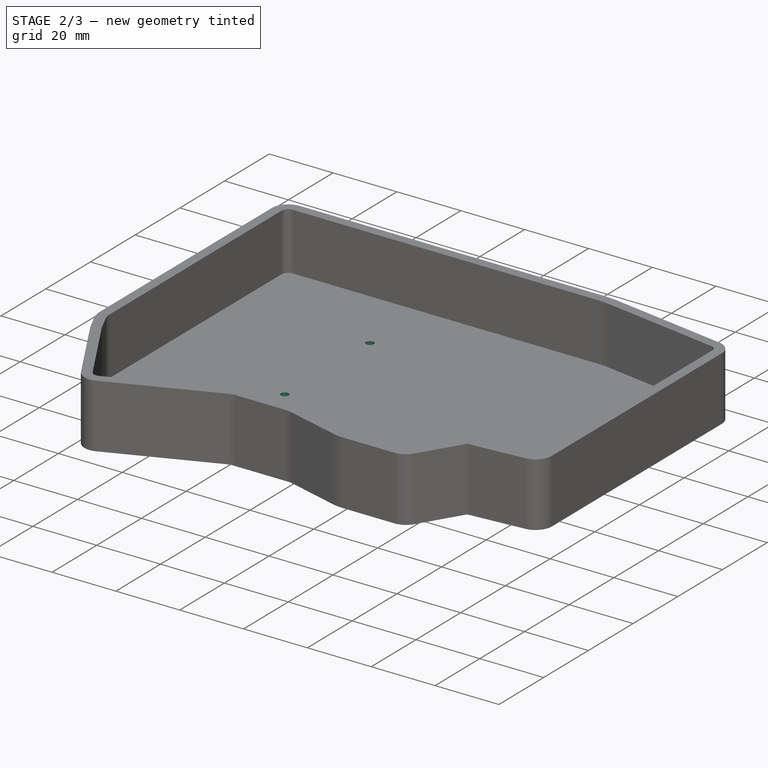
[diagram: stage 2 of 3 — iso view after this stage's code; geometry added in this stage tinted green]
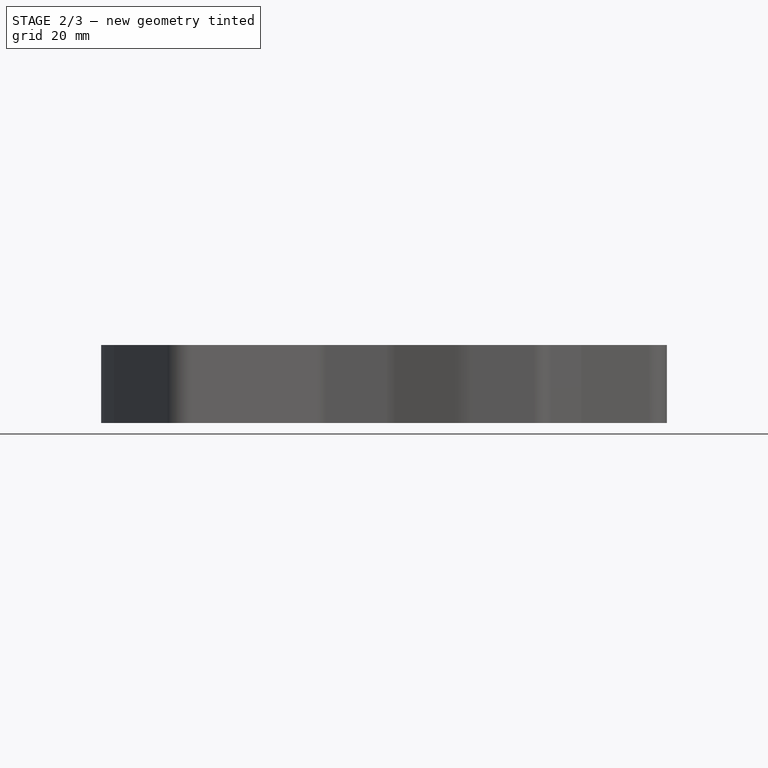
[diagram: stage 2 of 3 — front view after this stage's code; geometry added in this stage tinted green]
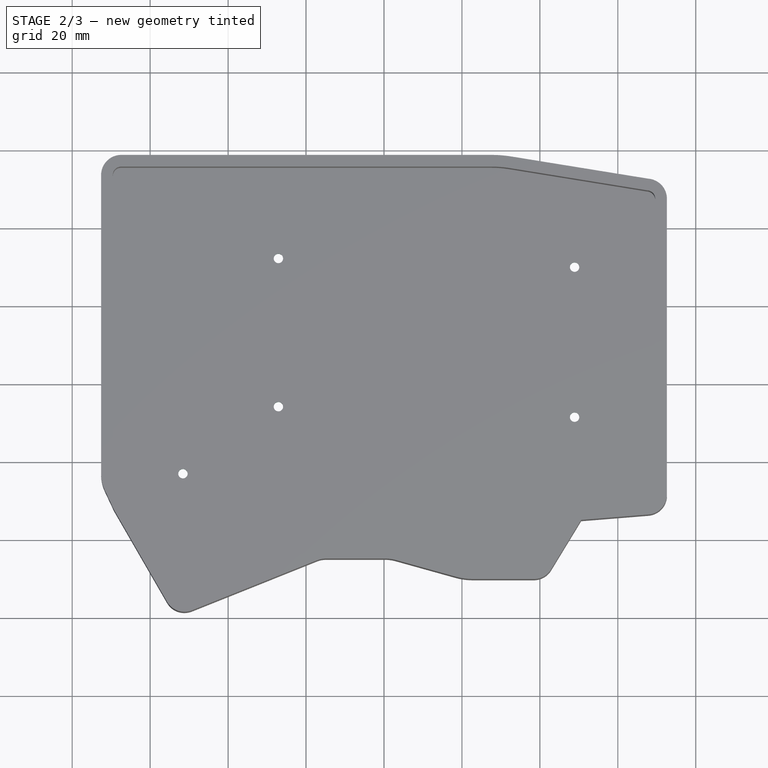
[diagram: stage 2 of 3 — top view after this stage's code; geometry added in this stage tinted green]
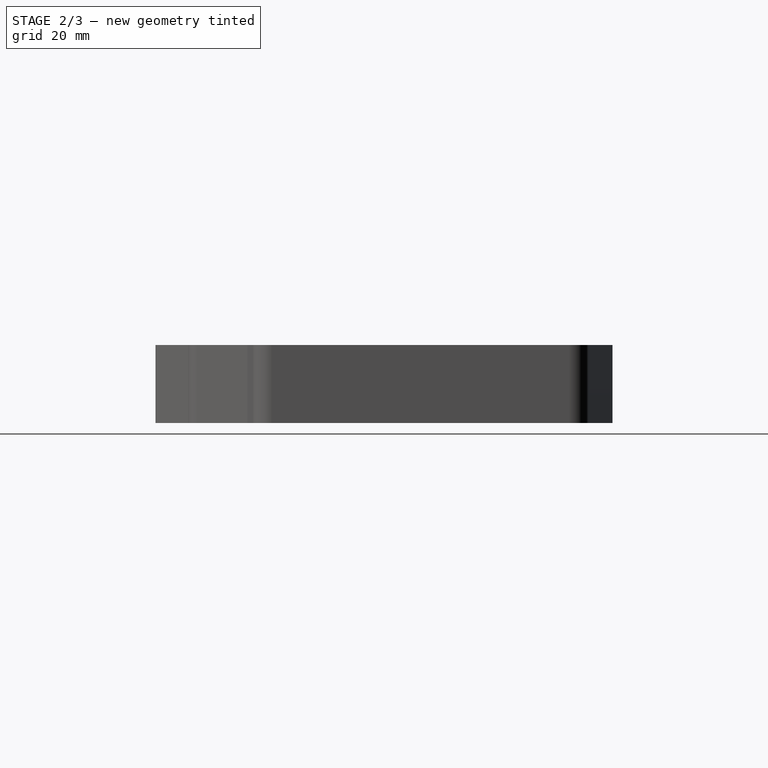
[diagram: stage 2 of 3 — right view after this stage's code; geometry added in this stage tinted green]
FEATURE [Sketcher::SketchObject] Sketch003  label="Controller cutout"
  FullyConstrained = true
  MapMode = 5
  Placement = pos=(0,58.585,0) rot=(0,0.707107,0.707107;3.14159rad)
  Support = -> [Pocket]
  expr: .Constraints[23] = Spreadsheet.caseheight
  expr: .Constraints[29] = Spreadsheet.controllerwidth
  sketch-geometry (15):
    g0: LineSegment [constr] StartX=56.09 StartY=-4 StartZ=0 EndX=56.09 EndY=0 EndZ=0
    g1: LineSegment [constr] StartX=56.09 StartY=-16 StartZ=0 EndX=56.09 EndY=-20 EndZ=0
    g2: LineSegment StartX=50.59 StartY=-4 StartZ=0 EndX=61.59 EndY=-4 EndZ=0
    g3: LineSegment StartX=63.59 StartY=-6 StartZ=0 EndX=63.59 EndY=-14 EndZ=0
    g4: LineSegment StartX=61.59 StartY=-16 StartZ=0 EndX=50.59 EndY=-16 EndZ=0
    g5: LineSegment StartX=48.59 StartY=-14 StartZ=0 EndX=48.59 EndY=-6 EndZ=0
    g6: ArcOfCircle CenterX=50.59 CenterY=-6 CenterZ=0 NormalX=0 NormalY=0 NormalZ=1 AngleXU=0 Radius=2 StartAngle=1.5708 EndAngle=3.14159
    g7: ArcOfCircle CenterX=50.59 CenterY=-14 CenterZ=0 NormalX=0 NormalY=0 NormalZ=1 AngleXU=0 Radius=2 StartAngle=3.14159 EndAngle=4.71239
    g8: ArcOfCircle CenterX=61.59 CenterY=-14 CenterZ=0 NormalX=0 NormalY=0 NormalZ=1 AngleXU=0 Radius=2 StartAngle=4.71239 EndAngle=6.28319
    g9: ArcOfCircle CenterX=61.59 CenterY=-6 CenterZ=0 NormalX=0 NormalY=0 NormalZ=1 AngleXU=0 Radius=2 StartAngle=0 EndAngle=1.5708
    g10: LineSegment [constr] StartX=56.09 StartY=-20 StartZ=0 EndX=56.09 EndY=0 EndZ=0
    g11: LineSegment [constr] StartX=56.09 StartY=0 StartZ=0 EndX=69.59 EndY=0 EndZ=0
    g12: LineSegment [constr] StartX=48.59 StartY=-10 StartZ=0 EndX=63.59 EndY=-10 EndZ=0
    g13: LineSegment [constr] StartX=0 StartY=-19 StartZ=0 EndX=69.59 EndY=-19 EndZ=0
    g14: LineSegment [constr] StartX=69.59 StartY=0 StartZ=0 EndX=69.59 EndY=-19 EndZ=0
  constraints (40):
    c: PointOnObject(g0,g-1)
    c: Vertical(g0)
    c: Vertical(g1)
    c: Distance(g1) = 4
    c: Equal(g0,g1)
    c: Horizontal(g2)
    c: Horizontal(g4)
    c: Vertical(g3)
    c: Vertical(g5)
    c: Tangent(g2,g6) = 1.5708
    c: Tangent(g5,g6) = 1.5708
    c: Tangent(g4,g7) = 1.5708
    c: Tangent(g5,g7) = 1.5708
    c: Tangent(g3,g8) = 1.5708
    c: Tangent(g4,g8) = 1.5708
    c: Tangent(g2,g9) = 1.5708
    c: Tangent(g3,g9) = 1.5708
    c: Radius(g6) = 2
    c: Radius(g9) = 2
    c: Radius(g8) = 2
    c: Radius(g7) = 2
    c: PointOnObject(g10,g-1)
    c: Vertical(g10)
    c: Distance(g10) = 20
    c: Coincident(g1,g10)
    c: Symmetric(g2,g2,g0)
    c: Symmetric(g4,g4,g1)
    c: Coincident(g11,g0)
    c: Distance(g11) = 13.5
    c: Distance(g12) = 15
    c: Symmetric(g5,g5,g12)
    c: Symmetric(g3,g3,g12)
    c: Horizontal(g13)
    c: Distance(g13) = 69.59
    c: PointOnObject(g13,g-2)
    c: Coincident(g14,g11)
    c: Coincident(g14,g13)
    c: Vertical(g14)
    c: Horizontal(g11)
    c: Distance(g14) = 19
FEATURE [Sketcher::SketchObject] Sketch005  label="Screw Holes"
  FullyConstrained = true
  MapMode = 5
  Support = -> [XY_Plane]
  expr: .Constraints[0] = Sketch.Constraints[0]
  expr: .Constraints[10] = Sketch.Constraints[10]
  expr: .Constraints[111] = Sketch.Constraints[106]
  expr: .Constraints[112] = Sketch.Constraints[107]
  expr: .Constraints[114] = Spreadsheet.screw
  expr: .Constraints[11] = Sketch.Constraints[11]
  expr: .Constraints[123] = Spreadsheet.screw
  expr: .Constraints[124] = Spreadsheet.screw
  expr: .Constraints[125] = Spreadsheet.screw
  expr: .Constraints[126] = Spreadsheet.screw
  expr: .Constraints[12] = Sketch.Constraints[12]
  expr: .Constraints[13] = Sketch.Constraints[13]
  expr: .Constraints[14] = Sketch.Constraints[14]
  expr: .Constraints[15] = Sketch.Constraints[15]
  expr: .Constraints[16] = Sketch.Constraints[16]
  expr: .Constraints[17] = Sketch.Constraints[17]
  expr: .Constraints[18] = Sketch.Constraints[18]
  expr: .Constraints[19] = Sketch.Constraints[19]
  expr: .Constraints[1] = Sketch.Constraints[1]
  expr: .Constraints[20] = Sketch.Constraints[20]
  expr: .Constraints[21] = Sketch.Constraints[21]
  expr: .Constraints[22] = Sketch.Constraints[22]
  expr: .Constraints[23] = Sketch.Constraints[23]
  expr: .Constraints[24] = Sketch.Constraints[24]
  expr: .Constraints[25] = Sketch.Constraints[25]
  expr: .Constraints[26] = Sketch.Constraints[26]
  expr: .Constraints[27] = Sketch.Constraints[27]
  expr: .Constraints[28] = Sketch.Constraints[28]
  expr: .Constraints[29] = Sketch.Constraints[29]
  expr: .Constraints[2] = Sketch.Constraints[2]
  expr: .Constraints[30] = Sketch.Constraints[30]
  expr: .Constraints[31] = Sketch.Constraints[31]
  expr: .Constraints[32] = Sketch.Constraints[32]
  expr: .Constraints[33] = Sketch.Constraints[33]
  expr: .Constraints[34] = Sketch.Constraints[34]
  expr: .Constraints[35] = Sketch.Constraints[35]
  expr: .Constraints[36] = Sketch.Constraints[36]
  expr: .Constraints[37] = Sketch.Constraints[37]
  expr: .Constraints[38] = Sketch.Constraints[38]
  expr: .Constraints[39] = Sketch.Constraints[39]
  expr: .Constraints[3] = Sketch.Constraints[3]
  expr: .Constraints[40] = Sketch.Constraints[40]
  expr: .Constraints[41] = Sketch.Constraints[41]
  expr: .Constraints[4] = Sketch.Constraints[4]
  expr: .Constraints[5] = Sketch.Constraints[5]
  expr: .Constraints[6] = Sketch.Constraints[6]
  expr: .Constraints[7] = Sketch.Constraints[7]
  expr: .Constraints[84] = Sketch.Constraints[79]
  expr: .Constraints[8] = Sketch.Constraints[8]
  expr: .Constraints[90] = Sketch.Constraints[85]
  expr: .Constraints[9] = Sketch.Constraints[9]
  sketch-geometry (54):
    g0: LineSegment [constr] StartX=67.5535 StartY=-29.715 StartZ=0 EndX=48.8435 EndY=-31.225 EndZ=0
    g1: LineSegment [constr] StartX=47.9535 StartY=-31.765 StartZ=0 EndX=39.4635 EndY=-45.715 EndZ=0
    g2: LineSegment [constr] StartX=38.4835 StartY=-46.255 StartZ=0 EndX=22.7635 EndY=-46.255 EndZ=0
    g3: LineSegment [constr] StartX=19.5535 StartY=-45.825 StartZ=0 EndX=4.0635 EndY=-41.515 EndZ=0
    g4: LineSegment [constr] StartX=0.3235 StartY=-41.005 StartZ=0 EndX=-14.8965 EndY=-41.005 EndZ=0
    g5: LineSegment [constr] StartX=-18.7065 StartY=-41.745 StartZ=0 EndX=-50.7765 EndY=-54.585 EndZ=0
    g6: LineSegment [constr] StartX=-52.2065 StartY=-54.085 StartZ=0 EndX=-65.73 EndY=-30.66 EndZ=0
    g7: LineSegment [constr] StartX=-65.73 StartY=-30.66 StartZ=0 EndX=-68.0265 EndY=-25.755 EndZ=0
    g8: LineSegment [constr] StartX=-68.5865 StartY=-23.275 StartZ=0 EndX=-68.5865 EndY=53.425 EndZ=0
    g9: LineSegment [constr] StartX=-67.4265 StartY=54.585 StartZ=0 EndX=27.6535 EndY=54.585 EndZ=0
    g10: LineSegment [constr] StartX=32.0535 StartY=54.225 StartZ=0 EndX=67.6235 EndY=48.465 EndZ=0
    g11: LineSegment [constr] StartX=68.5865 StartY=47.325 StartZ=0 EndX=68.6135 EndY=-28.565 EndZ=0
    g12: ArcOfCircle [constr] CenterX=-67.4265 CenterY=53.425 CenterZ=0 NormalX=0 NormalY=0 NormalZ=1 AngleXU=0 Radius=1.16 StartAngle=1.5708 EndAngle=3.14159
    g13: ArcOfCircle [constr] CenterX=27.6535 CenterY=27.5161 CenterZ=0 NormalX=0 NormalY=0 NormalZ=1 AngleXU=0 Radius=27.0689 StartAngle=1.40752 EndAngle=1.5708
    g14: ArcOfCircle [constr] CenterX=67.4403 CenterY=47.3335 CenterZ=0 NormalX=0 NormalY=0 NormalZ=1 AngleXU=0 Radius=1.14626 StartAngle=6.27579 EndAngle=7.69344
    g15: ArcOfCircle [constr] CenterX=67.4597 CenterY=-28.565 CenterZ=0 NormalX=0 NormalY=0 NormalZ=1 AngleXU=0 Radius=1.15382 StartAngle=4.79379 EndAngle=6.28319
    g16: ArcOfCircle [constr] CenterX=48.9188 CenterY=-32.3525 CenterZ=0 NormalX=0 NormalY=0 NormalZ=1 AngleXU=0 Radius=1.12996 StartAngle=1.63744 EndAngle=2.59487
    g17: ArcOfCircle [constr] CenterX=38.4835 CenterY=-45.0957 CenterZ=0 NormalX=0 NormalY=0 NormalZ=1 AngleXU=0 Radius=1.15926 StartAngle=4.71239 EndAngle=5.71964
    g18: ArcOfCircle [constr] CenterX=22.7635 CenterY=-34.0585 CenterZ=0 NormalX=0 NormalY=0 NormalZ=1 AngleXU=0 Radius=12.1965 StartAngle=4.44606 EndAngle=4.71239
    g19: ArcOfCircle [constr] CenterX=0.3235 CenterY=-54.9733 CenterZ=0 NormalX=0 NormalY=0 NormalZ=1 AngleXU=0 Radius=13.9683 StartAngle=1.29974 EndAngle=1.5708
    g20: ArcOfCircle [constr] CenterX=-14.8965 CenterY=-51.1832 CenterZ=0 NormalX=0 NormalY=0 NormalZ=1 AngleXU=0 Radius=10.1782 StartAngle=1.5708 EndAngle=1.95447
    g21: ArcOfCircle [constr] CenterX=-50.7765 CenterY=-52.2901 CenterZ=0 NormalX=0 NormalY=0 NormalZ=1 AngleXU=0 Radius=2.2949 StartAngle=4.03966 EndAngle=4.71239
    g22: ArcOfCircle [constr] CenterX=-62.8151 CenterY=-23.275 CenterZ=0 NormalX=0 NormalY=0 NormalZ=1 AngleXU=0 Radius=5.77143 StartAngle=3.14159 EndAngle=3.58576
    g23: LineSegment [constr] StartX=-68.5865 StartY=-23.275 StartZ=0 EndX=-62.8151 EndY=-23.275 EndZ=0
    g24: LineSegment [constr] StartX=-50.7765 StartY=-54.585 StartZ=0 EndX=-50.7765 EndY=-52.2901 EndZ=0
    g25: LineSegment [constr] StartX=-14.8965 StartY=-41.005 StartZ=0 EndX=-14.8965 EndY=-51.1832 EndZ=0
    g26: LineSegment [constr] StartX=0.3235 StartY=-41.005 StartZ=0 EndX=0.3235 EndY=-54.9733 EndZ=0
    g27: LineSegment [constr] StartX=22.7635 StartY=-34.0585 StartZ=0 EndX=22.7635 EndY=-46.255 EndZ=0
    g28: LineSegment [constr] StartX=38.4835 StartY=-46.255 StartZ=0 EndX=38.4835 EndY=-45.0957 EndZ=0
    g29: LineSegment [constr] StartX=47.9535 StartY=-31.765 StartZ=0 EndX=48.9188 EndY=-32.3525 EndZ=0
    g30: LineSegment [constr] StartX=68.6135 StartY=-28.565 StartZ=0 EndX=67.4597 EndY=-28.565 EndZ=0
    g31: LineSegment [constr] StartX=67.4403 StartY=47.3335 StartZ=0 EndX=67.6235 EndY=48.465 EndZ=0
    g32: LineSegment [constr] StartX=27.6535 StartY=54.585 StartZ=0 EndX=27.6535 EndY=27.5161 EndZ=0
    g33: LineSegment [constr] StartX=-68.5865 StartY=53.425 StartZ=0 EndX=-67.4265 EndY=53.425 EndZ=0
    g34: LineSegment [constr] StartX=-68.5865 StartY=54.585 StartZ=0 EndX=68.5865 EndY=54.585 EndZ=0
    g35: LineSegment [constr] StartX=68.5865 StartY=54.585 StartZ=0 EndX=68.5865 EndY=-54.585 EndZ=0
    g36: LineSegment [constr] StartX=68.5865 StartY=-54.585 StartZ=0 EndX=-68.5865 EndY=-54.585 EndZ=0
    g37: LineSegment [constr] StartX=-68.5865 StartY=-54.585 StartZ=0 EndX=-68.5865 EndY=54.585 EndZ=0
    g38: GeomPoint [constr] X=0 Y=0 Z=0
    g39: Circle CenterX=-27.0865 CenterY=32.315 CenterZ=0 NormalX=0 NormalY=0 NormalZ=1 AngleXU=0 Radius=1.2
    g40: LineSegment [constr] StartX=-27.0865 StartY=32.315 StartZ=0 EndX=-68.5865 EndY=32.315 EndZ=0
    g41: LineSegment [constr] StartX=-27.0865 StartY=32.315 StartZ=0 EndX=-27.0865 EndY=54.585 EndZ=0
    g42: Circle CenterX=48.9135 CenterY=-8.415 CenterZ=0 NormalX=0 NormalY=0 NormalZ=1 AngleXU=0 Radius=1.2
    g43: Circle CenterX=48.9135 CenterY=30.085 CenterZ=0 NormalX=0 NormalY=0 NormalZ=1 AngleXU=0 Radius=1.2
    g44: Circle CenterX=-27.0865 CenterY=-5.715 CenterZ=0 NormalX=0 NormalY=0 NormalZ=1 AngleXU=0 Radius=1.2
    g45: Circle CenterX=-51.5865 CenterY=-22.915 CenterZ=0 NormalX=0 NormalY=0 NormalZ=1 AngleXU=0 Radius=1.2
    g46: LineSegment [constr] StartX=-68.5865 StartY=30.085 StartZ=0 EndX=48.9135 EndY=30.085 EndZ=0
    g47: LineSegment [constr] StartX=-68.5865 StartY=-5.715 StartZ=0 EndX=-27.0865 EndY=-5.715 EndZ=0
    g48: LineSegment [constr] StartX=-27.0865 StartY=-5.715 StartZ=0 EndX=-27.0865 EndY=54.585 EndZ=0
    g49: LineSegment [constr] StartX=-68.5865 StartY=-22.915 StartZ=0 EndX=-51.5865 EndY=-22.915 EndZ=0
    g50: LineSegment [constr] StartX=-68.5865 StartY=-8.415 StartZ=0 EndX=48.9135 EndY=-8.415 EndZ=0
    g51: LineSegment [constr] StartX=48.9135 StartY=-8.415 StartZ=0 EndX=48.9135 EndY=54.585 EndZ=0
    g52: LineSegment [constr] StartX=48.9135 StartY=30.085 StartZ=0 EndX=48.9135 EndY=54.585 EndZ=0
    g53: LineSegment [constr] StartX=-51.5865 StartY=-22.915 StartZ=0 EndX=-51.5865 EndY=54.585 EndZ=0
  constraints (159):
    c: DistanceX(g0,g11) = 1.06
    c: DistanceY(g0,g11) = 1.15
    c: DistanceX(g0,g11) = 19.77
    c: DistanceY(g0,g11) = 2.66
    c: DistanceX(g1,g11) = 20.66
    c: DistanceY(g1,g11) = 3.2
    c: DistanceX(g1,g11) = 29.15
    c: DistanceY(g1,g11) = 17.15
    c: DistanceX(g2,g11) = 30.13
    c: DistanceY(g2,g11) = 17.69
    c: DistanceX(g2,g11) = 45.85
    c: DistanceY(g2,g11) = 17.69
    c: DistanceX(g3,g11) = 49.06
    c: DistanceY(g3,g11) = 17.26
    c: DistanceX(g3,g11) = 64.55
    c: DistanceY(g3,g11) = 12.95
    c: DistanceX(g4,g11) = 68.29
    c: DistanceY(g4,g11) = 12.44
    c: DistanceX(g4,g11) = 83.51
    c: DistanceY(g4,g11) = 12.44
    c: DistanceX(g5,g11) = 87.32
    c: DistanceY(g5,g11) = 13.18
    c: DistanceX(g5,g11) = 119.39
    c: DistanceY(g5,g11) = 26.02
    c: DistanceX(g6,g11) = 120.82
    c: DistanceY(g6,g11) = 25.52
    c: DistanceX(g7,g11) = 136.64
    c: DistanceY(g7,g11) = -2.81
    c: DistanceX(g8,g11) = 137.2
    c: DistanceY(g8,g11) = -5.29
    c: DistanceX(g8,g11) = 137.2
    c: DistanceY(g8,g11) = -81.99
    c: DistanceX(g9,g11) = 136.04
    c: DistanceY(g9,g11) = -83.15
    c: DistanceX(g9,g11) = 40.96
    c: DistanceY(g9,g11) = -83.15
    c: DistanceX(g10,g11) = 36.56
    c: DistanceY(g10,g11) = -82.79
    c: DistanceX(g10,g11) = 0.99
    c: DistanceY(g10,g11) = -77.03
    c: DistanceX(g11,g11) = 0.027
    c: DistanceY(g11,g11) = -75.89
    c: Coincident(g12,g8)
    c: Coincident(g12,g9)
    c: Coincident(g13,g9)
    c: Coincident(g13,g10)
    c: Coincident(g14,g10)
    c: Coincident(g14,g11)
    c: Coincident(g15,g11)
    c: Coincident(g15,g0)
    c: Coincident(g16,g0)
    c: Coincident(g16,g1)
    c: Coincident(g17,g1)
    c: Coincident(g17,g2)
    c: Coincident(g18,g2)
    c: Coincident(g18,g3)
    c: Coincident(g19,g3)
    c: Coincident(g19,g4)
    c: Coincident(g20,g4)
    c: Coincident(g20,g5)
    c: Coincident(g21,g5)
    c: Coincident(g21,g6)
    c: Coincident(g22,g7)
    c: Coincident(g22,g8)
    c: Coincident(g23,g8)
    c: Coincident(g23,g22)
    c: Horizontal(g23)
    c: Coincident(g24,g5)
    c: Coincident(g24,g21)
    c: Vertical(g24)
    c: Coincident(g25,g4)
    c: Coincident(g25,g20)
    c: Vertical(g25)
    c: Coincident(g26,g4)
    c: Coincident(g26,g19)
    c: Vertical(g26)
    c: Coincident(g27,g18)
    c: Coincident(g27,g2)
    c: Vertical(g27)
    c: Coincident(g28,g2)
    c: Coincident(g28,g17)
    c: Vertical(g28)
    c: Coincident(g29,g1)
    c: Coincident(g29,g16)
    c: Angle(g1,g29) = 1.5708
    c: Coincident(g30,g11)
    c: Coincident(g30,g15)
    c: Horizontal(g30)
    c: Coincident(g31,g14)
    c: Coincident(g31,g10)
    c: Angle(g10,g31) = 1.5708
    c: Coincident(g32,g9)
    c: Coincident(g32,g13)
    c: Vertical(g32)
    c: Coincident(g33,g8)
    c: Coincident(g33,g12)
    c: Horizontal(g33)
    c: Coincident(g34,g35)
    c: Coincident(g35,g36)
    c: Coincident(g36,g37)
    c: Coincident(g37,g34)
    c: Horizontal(g34)
    c: Horizontal(g36)
    c: Vertical(g35)
    c: Vertical(g37)
    c: PointOnObject(g9,g34)
    c: PointOnObject(g11,g35)
    c: PointOnObject(g5,g36)
    c: PointOnObject(g8,g37)
    c: Symmetric(g36,g34,g38)
    c: Coincident(g38,g-1)
    c: DistanceX(g7) = -65.73
    c: DistanceY(g7) = -30.66
    c: Coincident(g6,g7)
    c: Diameter(g39) = 2.4
    c: Coincident(g40,g39)
    c: PointOnObject(g40,g8)
    c: Horizontal(g40)
    c: Distance(g40) = 41.5
    c: Coincident(g41,g39)
    c: PointOnObject(g41,g9)
    c: Vertical(g41)
    c: Distance(g41) = 22.27
    c: Diameter(g42) = 2.4
    c: Diameter(g43) = 2.4
    c: Diameter(g45) = 2.4
    c: Diameter(g44) = 2.4
    c: PointOnObject(g46,g8)
    c: Horizontal(g46)
    c: Distance(g46) = 117.5
    c: Coincident(g46,g43)
    c: PointOnObject(g47,g8)
    c: Horizontal(g47)
    c: Coincident(g44,g47)
    c: Distance(g47) = 41.5
    c: Coincident(g48,g44)
    c: PointOnObject(g48,g9)
    c: Vertical(g48)
    c: Distance(g48) = 60.3
    c: PointOnObject(g49,g8)
    c: Horizontal(g49)
    c: Coincident(g49,g45)
    c: Distance(g49) = 17
    c: PointOnObject(g50,g8)
    c: Coincident(g50,g42)
    c: Horizontal(g50)
    c: Distance(g50) = 117.5
    c: Coincident(g51,g42)
    c: PointOnObject(g51,g9)
    c: Vertical(g51)
    c: Distance(g51) = 63
    c: Coincident(g52,g43)
    c: PointOnObject(g52,g9)
    c: Distance(g52) = 24.5
    c: Vertical(g52)
    c: Coincident(g53,g45)
    c: PointOnObject(g53,g9)
    c: Vertical(g53)
    c: Distance(g53) = 77.5
FEATURE [Sketcher::SketchObject] Sketch007  label="Screw Hole dimensions"
  FullyConstrained = false
  sketch-geometry (17):
    g0: Circle [constr] CenterX=47.3056 CenterY=-37.6226 CenterZ=0 NormalX=0 NormalY=0 NormalZ=1 AngleXU=0 Radius=0.992689
    g1: Circle [constr] CenterX=123.507 CenterY=-39.8147 CenterZ=0 NormalX=0 NormalY=0 NormalZ=1 AngleXU=0 Radius=0.99318
    g2: Circle [constr] CenterX=123.516 CenterY=-78.0275 CenterZ=0 NormalX=0 NormalY=0 NormalZ=1 AngleXU=0 Radius=1.00187
    g3: Circle [constr] CenterX=47.3111 CenterY=-75.6094 CenterZ=0 NormalX=0 NormalY=0 NormalZ=1 AngleXU=0 Radius=0.99821
    g4: Circle [constr] CenterX=22.7062 CenterY=-92.8128 CenterZ=0 NormalX=0 NormalY=0 NormalZ=1 AngleXU=0 Radius=0.997709
    g5: LineSegment [constr] StartX=22.7062 StartY=-92.8128 StartZ=0 EndX=5.98488 EndY=-92.8128 EndZ=0
    g6: LineSegment [constr] StartX=5.98488 StartY=-93.2104 StartZ=0 EndX=5.98488 EndY=-15.8994 EndZ=0
    g7: LineSegment [constr] StartX=7.13548 StartY=-15.3534 StartZ=0 EndX=121.776 EndY=-15.3534 EndZ=0
    g8: LineSegment [constr] StartX=47.3111 StartY=-75.6094 StartZ=0 EndX=5.98488 EndY=-75.6094 EndZ=0
    g9: LineSegment [constr] StartX=47.3056 StartY=-37.6226 StartZ=0 EndX=5.98488 EndY=-37.6226 EndZ=0
    g10: LineSegment [constr] StartX=41.3606 StartY=-37.6226 StartZ=0 EndX=41.3606 EndY=-15.3534 EndZ=0
    g11: LineSegment [constr] StartX=45.0897 StartY=-75.6094 StartZ=0 EndX=45.0897 EndY=-15.3534 EndZ=0
    g12: LineSegment [constr] StartX=123.507 StartY=-39.8147 StartZ=0 EndX=5.98488 EndY=-39.8147 EndZ=0
    g13: LineSegment [constr] StartX=123.516 StartY=-78.0275 StartZ=0 EndX=5.98488 EndY=-78.0275 EndZ=0
    g14: LineSegment [constr] StartX=120.849 StartY=-78.0275 StartZ=0 EndX=120.849 EndY=-15.3534 EndZ=0
    g15: LineSegment [constr] StartX=117.513 StartY=-39.8147 StartZ=0 EndX=117.513 EndY=-15.3534 EndZ=0
    g16: LineSegment [constr] StartX=19.7711 StartY=-92.8128 StartZ=0 EndX=19.7711 EndY=-15.3534 EndZ=0
  constraints (48):
    c: DistanceX(g6) = 5.98488
    c: DistanceY(g6) = -93.2104
    c: DistanceX(g4) = 22.7062
    c: DistanceY(g4) = -92.8128
    c: DistanceX(g3) = 47.3111
    c: DistanceY(g3) = -75.6094
    c: DistanceX(g0) = 47.3056
    c: DistanceY(g0) = -37.6226
    c: DistanceX(g1) = 123.507
    c: DistanceY(g1) = -39.8147
    c: DistanceX(g2) = 123.516
    c: DistanceY(g2) = -78.0275
    c: Coincident(g5,g4)
    c: Horizontal(g5)
    c: Vertical(g6)
    c: DistanceY(g6) = -15.8994
    c: Horizontal(g7)
    c: DistanceX(g7) = 7.13548
    c: DistanceY(g7) = -15.3534
    c: DistanceX(g7) = 121.776
    c: PointOnObject(g5,g6)
    c: Coincident(g8,g3)
    c: PointOnObject(g8,g6)
    c: Horizontal(g8)
    c: Coincident(g9,g0)
    c: PointOnObject(g9,g6)
    c: Horizontal(g9)
    c: PointOnObject(g10,g9)
    c: PointOnObject(g10,g7)
    c: Vertical(g10)
    c: PointOnObject(g11,g8)
    c: PointOnObject(g11,g7)
    c: Vertical(g11)
    c: Coincident(g12,g1)
    c: PointOnObject(g12,g6)
    c: Horizontal(g12)
    c: Coincident(g13,g2)
    c: PointOnObject(g13,g6)
    c: Horizontal(g13)
    c: PointOnObject(g14,g13)
    c: PointOnObject(g14,g7)
    c: Vertical(g14)
    c: PointOnObject(g15,g12)
    c: PointOnObject(g15,g7)
    c: Vertical(g15)
    c: PointOnObject(g16,g5)
    c: PointOnObject(g16,g7)
    c: Vertical(g16)
FEATURE [PartDesign::Pocket] Pocket003
  BaseFeature = -> Pocket
  ClaimChildren = false
  Fit = 0
  FitJoin = 0
  InnerFit = 0
  InnerFitJoin = 0
  InnerTaperAngle = 0
  InnerTaperAngleRev = 0
  Length = 5
  Length2 = 100
  NewSolid = false
  Profile = -> Sketch005
  Suppress = false
  Type = 1
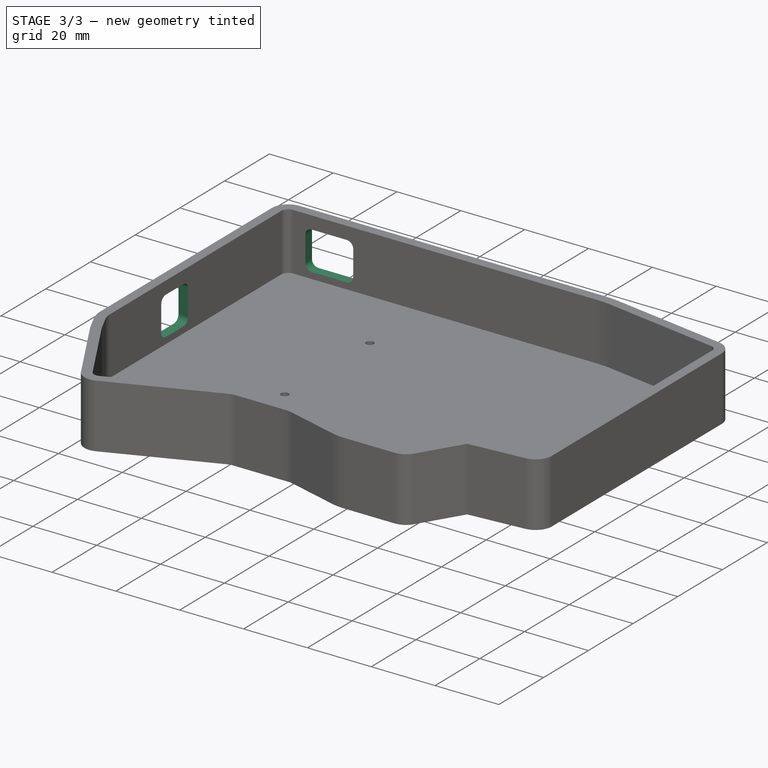
[diagram: stage 3 of 3 — iso view after this stage's code; geometry added in this stage tinted green]
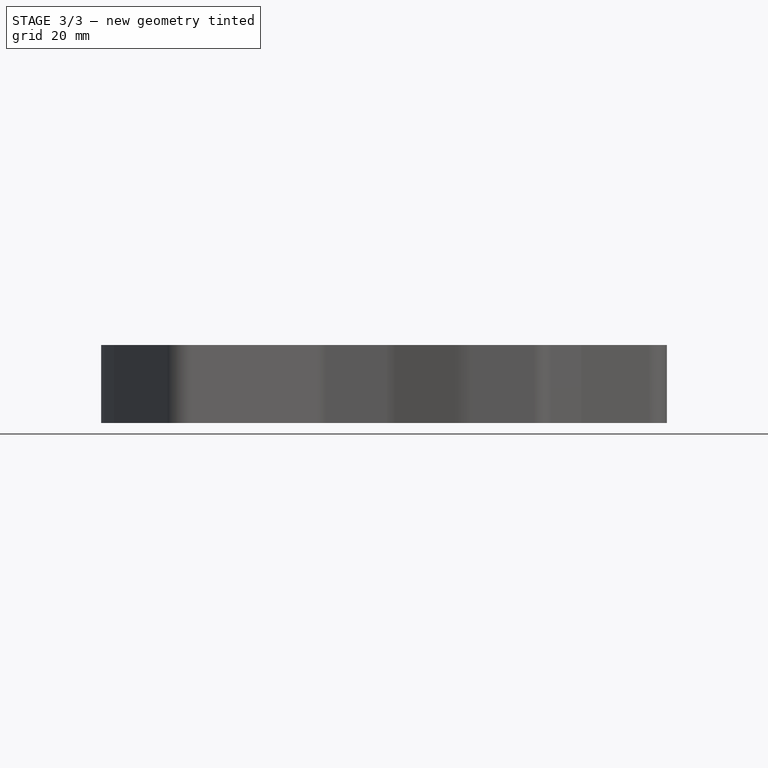
[diagram: stage 3 of 3 — front view after this stage's code; geometry added in this stage tinted green]
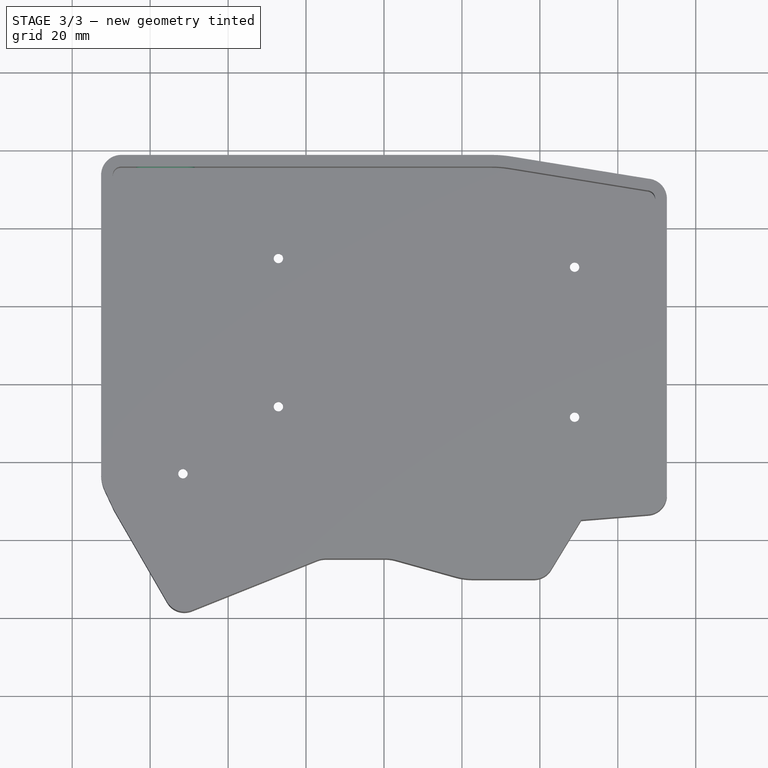
[diagram: stage 3 of 3 — top view after this stage's code; geometry added in this stage tinted green]
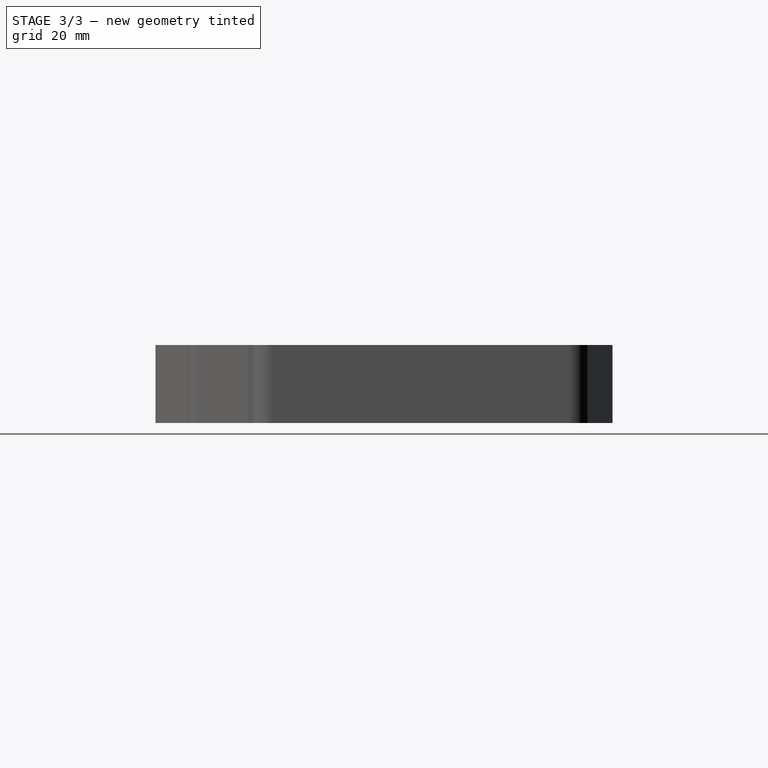
[diagram: stage 3 of 3 — right view after this stage's code; geometry added in this stage tinted green]
FEATURE [PartDesign::Pocket] Pocket004
  BaseFeature = -> Pocket003
  ClaimChildren = false
  Fit = 0
  FitJoin = 0
  InnerFit = 0
  InnerFitJoin = 0
  InnerTaperAngle = 0
  InnerTaperAngleRev = 0
  Length = 5
  Length2 = 100
  NewSolid = false
  Profile = -> Sketch003
  Suppress = false
  Type = 0
  UsePipeForDraft = true
FEATURE [Sketcher::SketchObject] Sketch004  label="TRRS cutout"
  FullyConstrained = true
  MapMode = 5
  Placement = pos=(-72.5865,0,0) rot=(0.57735,-0.57735,-0.57735;2.0944rad)
  Support = -> [Pocket004]
  expr: .Constraints[28] = Spreadsheet.caseheight
  expr: .Constraints[31] = Spreadsheet.trrswidth
  sketch-geometry (14):
    g0: LineSegment StartX=-9.69 StartY=-4 StartZ=0 EndX=-1.69 EndY=-4 EndZ=0
    g1: LineSegment StartX=0.31 StartY=-6 StartZ=0 EndX=0.31 EndY=-14 EndZ=0
    g2: LineSegment StartX=-1.69 StartY=-16 StartZ=0 EndX=-9.69 EndY=-16 EndZ=0
    g3: LineSegment StartX=-11.69 StartY=-14 StartZ=0 EndX=-11.69 EndY=-6 EndZ=0
    g4: LineSegment [constr] StartX=-5.69 StartY=0 StartZ=0 EndX=-5.69 EndY=-4 EndZ=0
    g5: LineSegment [constr] StartX=-5.69 StartY=-20 StartZ=0 EndX=-5.69 EndY=-16 EndZ=0
    g6: ArcOfCircle CenterX=-9.69 CenterY=-6 CenterZ=0 NormalX=0 NormalY=0 NormalZ=1 AngleXU=0 Radius=2 StartAngle=1.5708 EndAngle=3.14159
    g7: ArcOfCircle CenterX=-1.69 CenterY=-6 CenterZ=0 NormalX=0 NormalY=0 NormalZ=1 AngleXU=0 Radius=2 StartAngle=0 EndAngle=1.5708
    g8: ArcOfCircle CenterX=-1.69 CenterY=-14 CenterZ=0 NormalX=0 NormalY=0 NormalZ=1 AngleXU=0 Radius=2 StartAngle=4.71239 EndAngle=6.28319
    g9: ArcOfCircle CenterX=-9.69 CenterY=-14 CenterZ=0 NormalX=0 NormalY=0 NormalZ=1 AngleXU=0 Radius=2 StartAngle=3.14159 EndAngle=4.71239
    g10: LineSegment [constr] StartX=-5.69 StartY=-10 StartZ=0 EndX=23.31 EndY=-10 EndZ=0
    g11: LineSegment [constr] StartX=-5.69 StartY=0 StartZ=0 EndX=-5.69 EndY=-20 EndZ=0
    g12: LineSegment [constr] StartX=-11.69 StartY=-10 StartZ=0 EndX=0.31 EndY=-10 EndZ=0
    g13: LineSegment [constr] StartX=0 StartY=-10 StartZ=0 EndX=23.31 EndY=-10 EndZ=0
  constraints (36):
    c: Horizontal(g0)
    c: Horizontal(g2)
    c: Vertical(g1)
    c: Vertical(g3)
    c: Distance(g4) = 4
    c: Vertical(g5)
    c: Distance(g5) = 4
    c: Tangent(g0,g6) = 1.5708
    c: Tangent(g3,g6) = 1.5708
    c: Tangent(g0,g7) = 1.5708
    c: Tangent(g1,g7) = 1.5708
    c: Tangent(g1,g8) = 1.5708
    c: Tangent(g2,g8) = 1.5708
    c: Tangent(g2,g9) = 1.5708
    c: Tangent(g3,g9) = 1.5708
    c: Radius(g6) = 2
    c: Radius(g7) = 2
    c: Radius(g8) = 2
    c: Radius(g9) = 2
    c: Horizontal(g10)
    c: Distance(g10) = 29
    c: Symmetric(g0,g0,g4)
    c: Symmetric(g2,g2,g5)
    c: Vertical(g4)
    c: PointOnObject(g4,g-1)
    c: Symmetric(g4,g5,g10)
    c: Coincident(g11,g4)
    c: Coincident(g11,g5)
    c: Distance(g11) = 20
    c: Symmetric(g1,g1,g12)
    c: Symmetric(g3,g3,g12)
    c: Distance(g12) = 12
    c: PointOnObject(g13,g-2)
    c: Horizontal(g13)
    c: Distance(g13) = 23.31
    c: Coincident(g13,g10)
FEATURE [PartDesign::Pocket] Pocket005
  BaseFeature = -> Pocket004
  ClaimChildren = false
  Fit = 0
  FitJoin = 0
  InnerFit = 0
  InnerFitJoin = 0
  InnerTaperAngle = 0
  InnerTaperAngleRev = 0
  Length = 5
  Length2 = 100
  NewSolid = false
  Profile = -> Sketch004
  Suppress = false
  Type = 0
  UsePipeForDraft = true
FEATURE [PartDesign::Body] Body
  AutoGroupSolids = false
  ExportMode = 0
  Group = -> [Sketch,Sketch001,Pad,Sketch002,Pocket,Sketch003,Sketch004,Sketch005,Pocket003,Pocket004,Pocket005]
  Origin = -> Origin
  Tip = -> Pocket005
  _ExportChildren = -> [Sketch,Pad,Pocket,Pocket003,Pocket004,Pocket005]
  _GroupVersion = 1
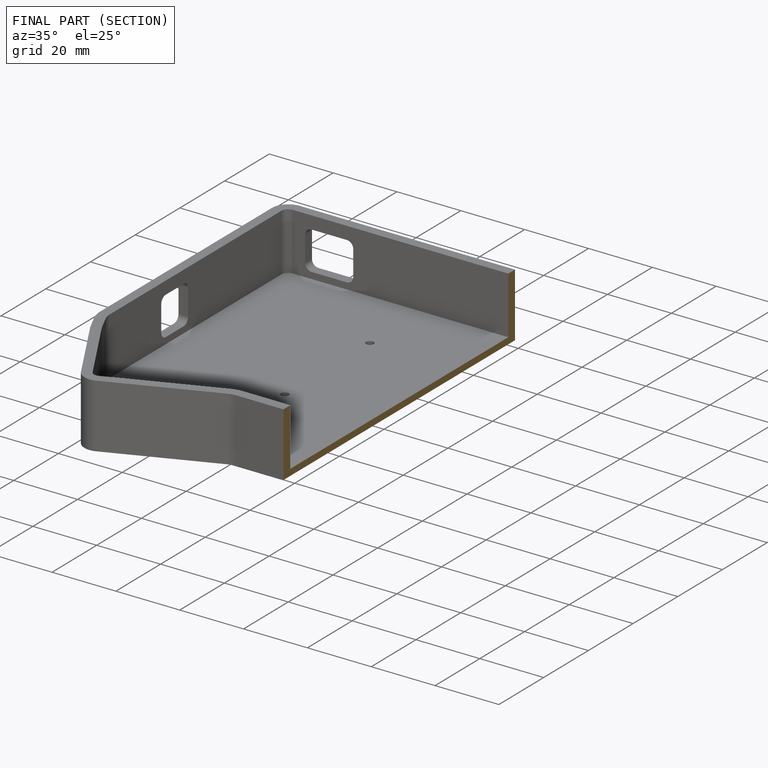
[diagram: finished part — half-section view (interior)]
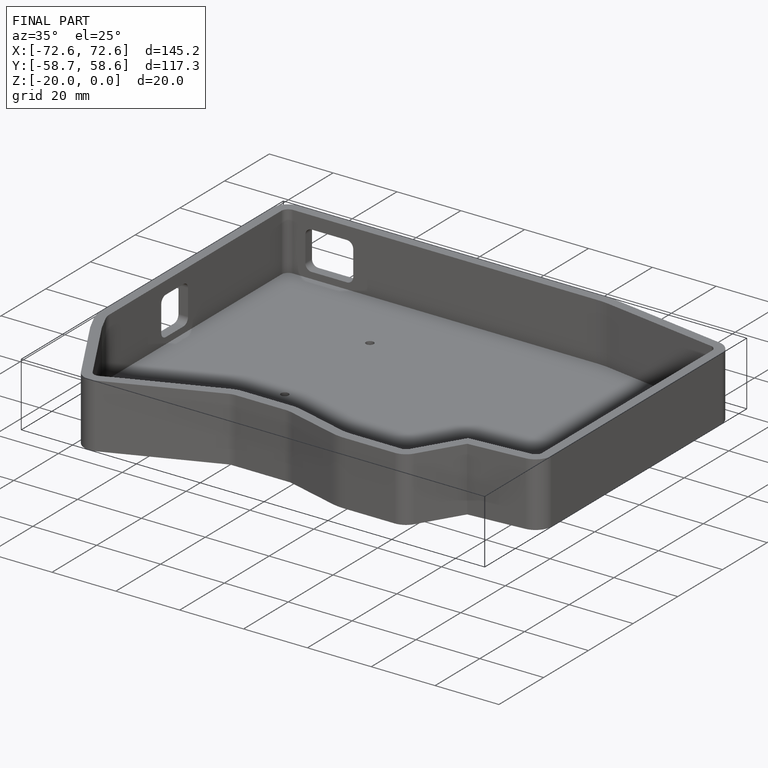
[diagram: finished part — iso view with bounding-box wireframe]
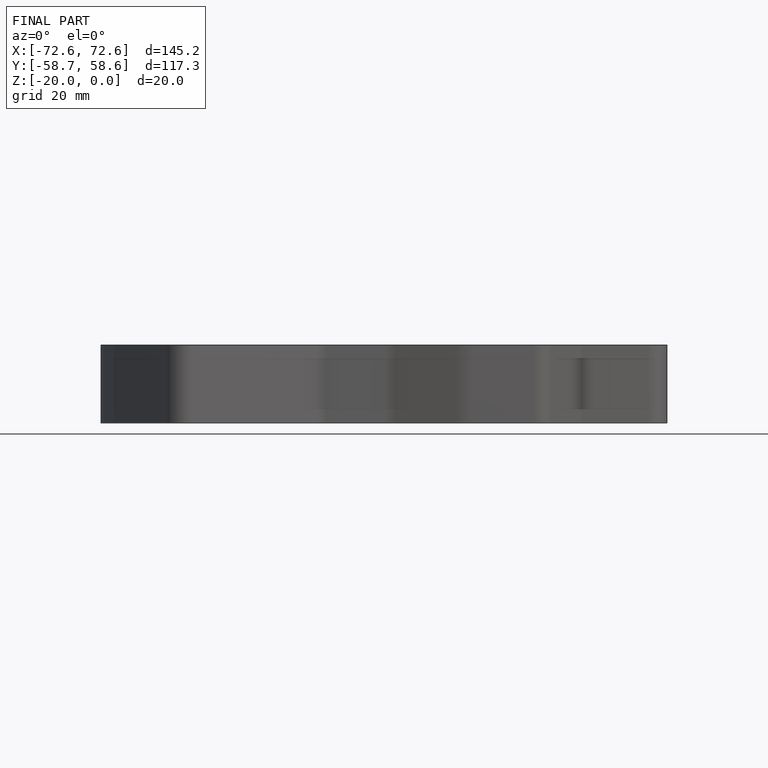
[diagram: finished part — front view with bounding-box wireframe]
